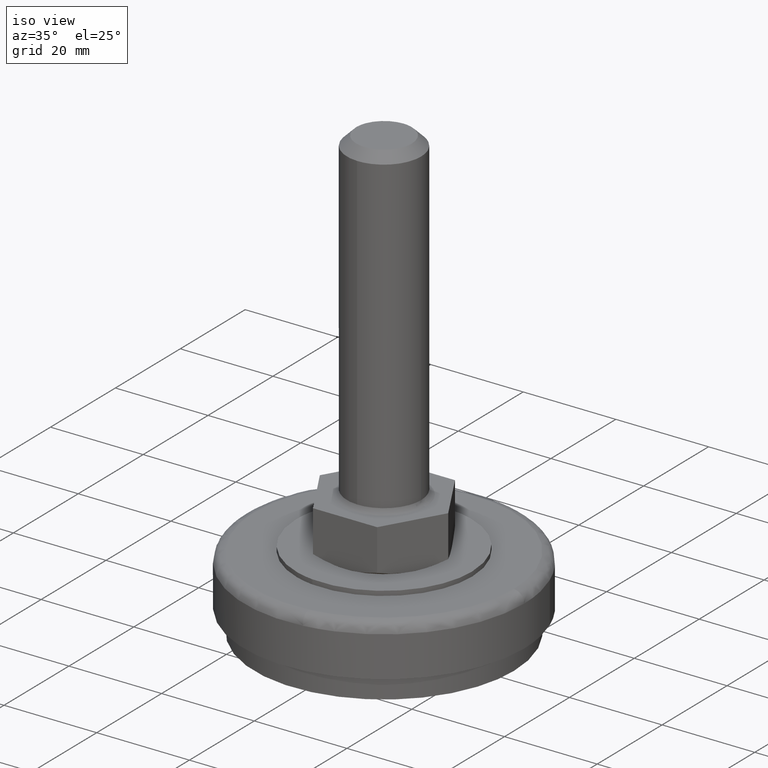
[diagram: clean part render]
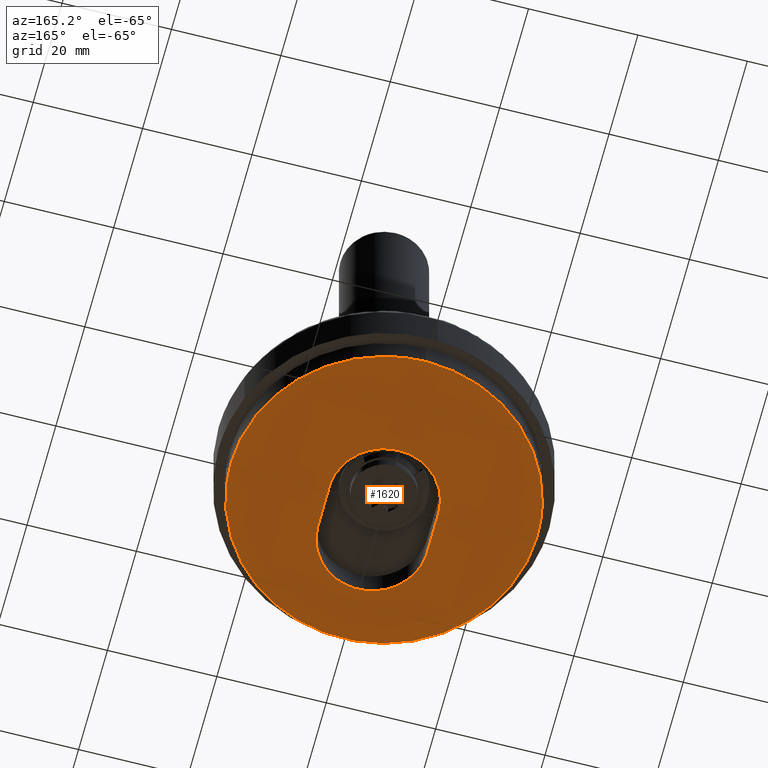
[diagram: tour spotlight — one face highlighted and labeled with its STEP entity id]
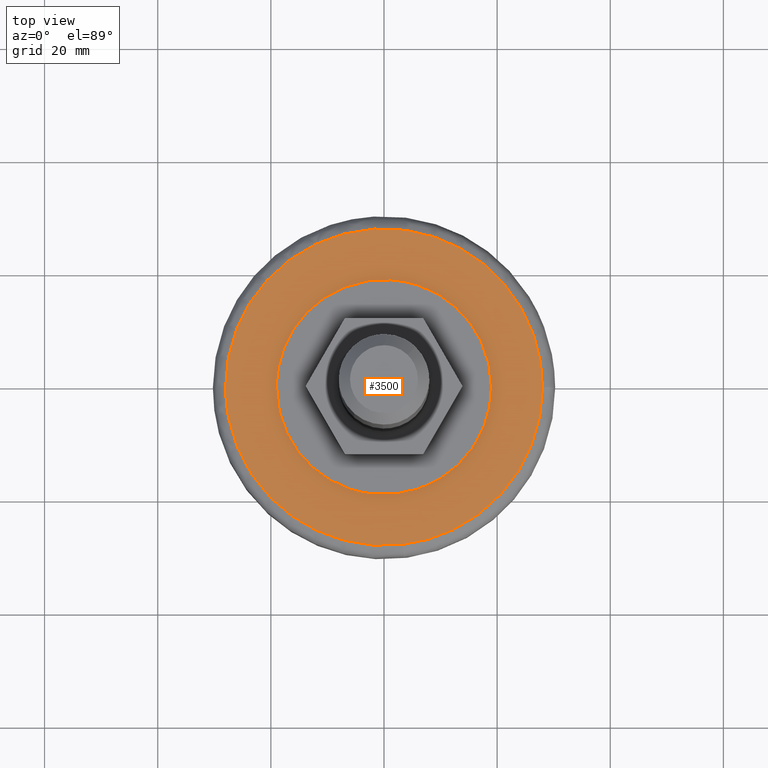
[diagram: tour spotlight — one face highlighted and labeled with its STEP entity id]
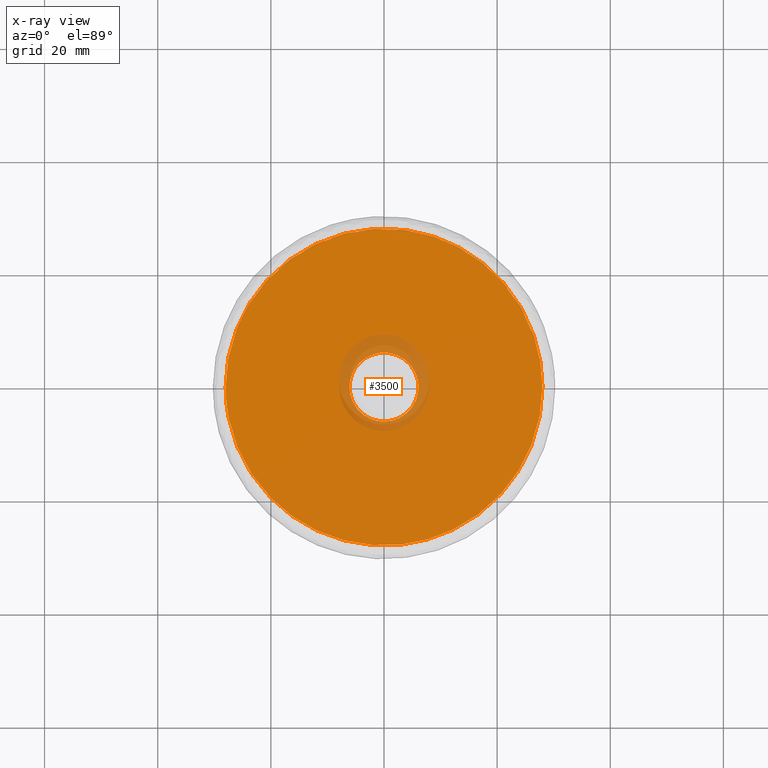
[diagram: x-ray of the same camera — body ghosted, this tour face saturated]
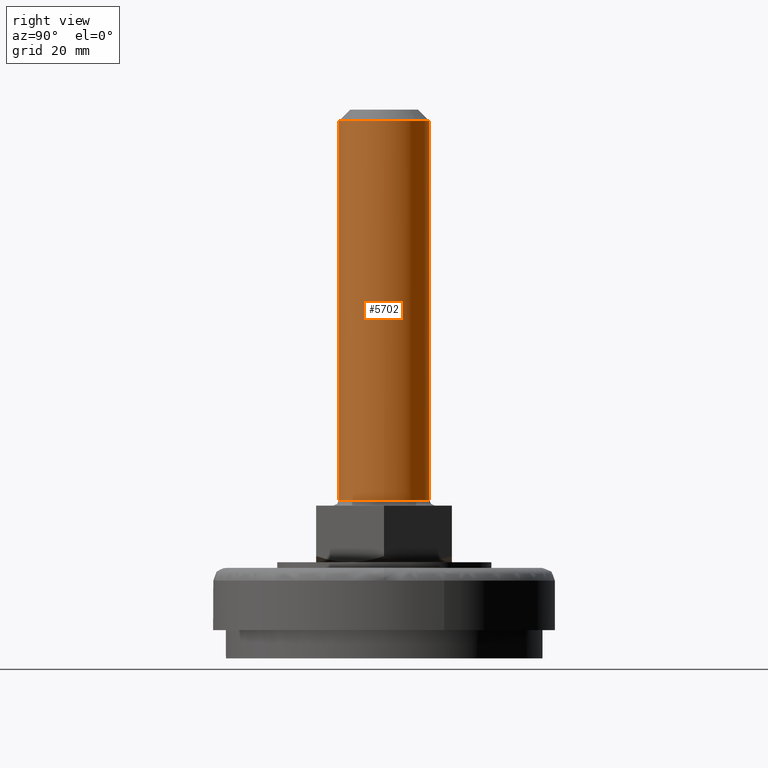
[diagram: tour spotlight — one face highlighted and labeled with its STEP entity id]
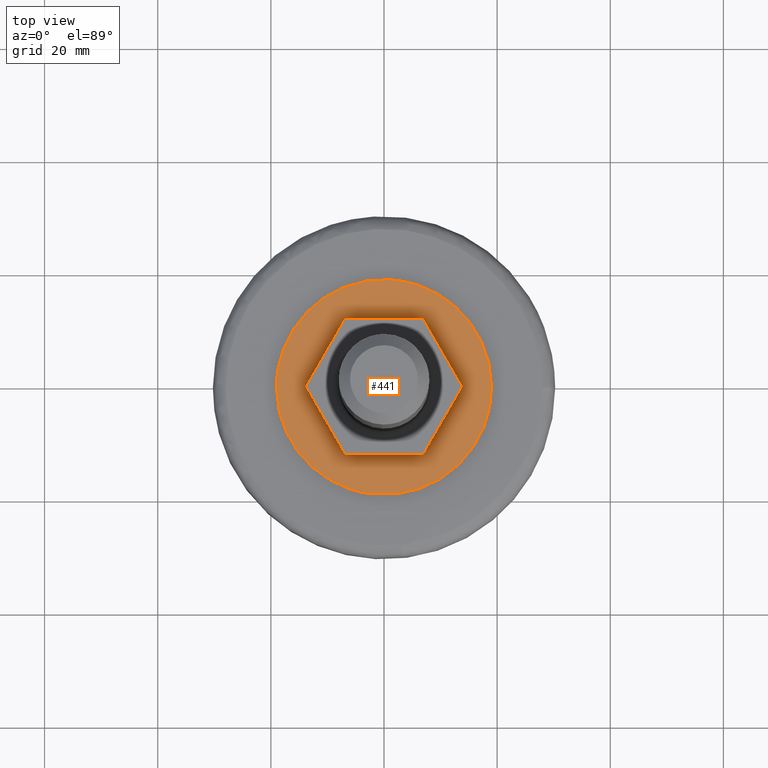
[diagram: tour spotlight — one face highlighted and labeled with its STEP entity id]
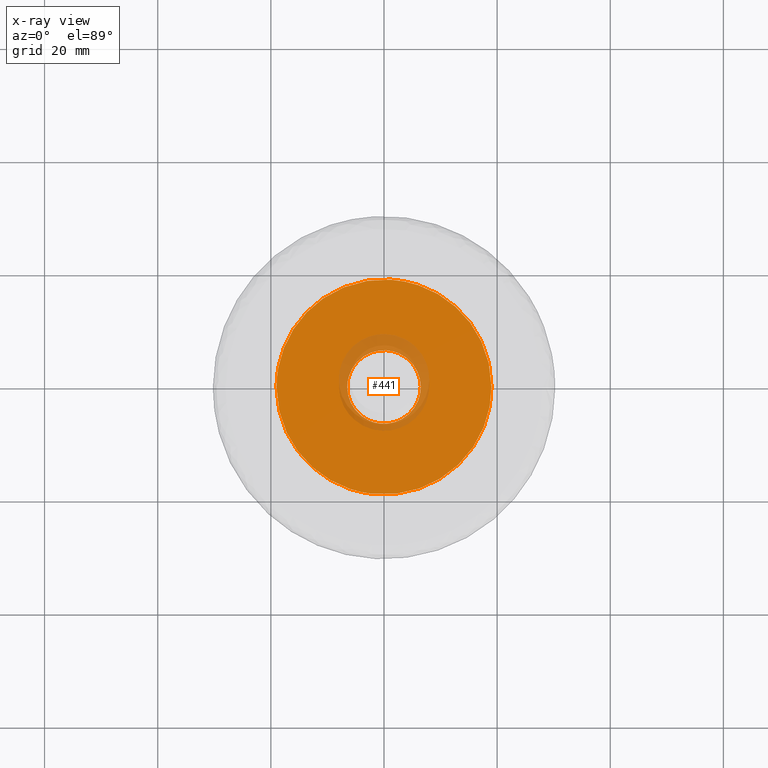
[diagram: x-ray of the same camera — body ghosted, this tour face saturated]
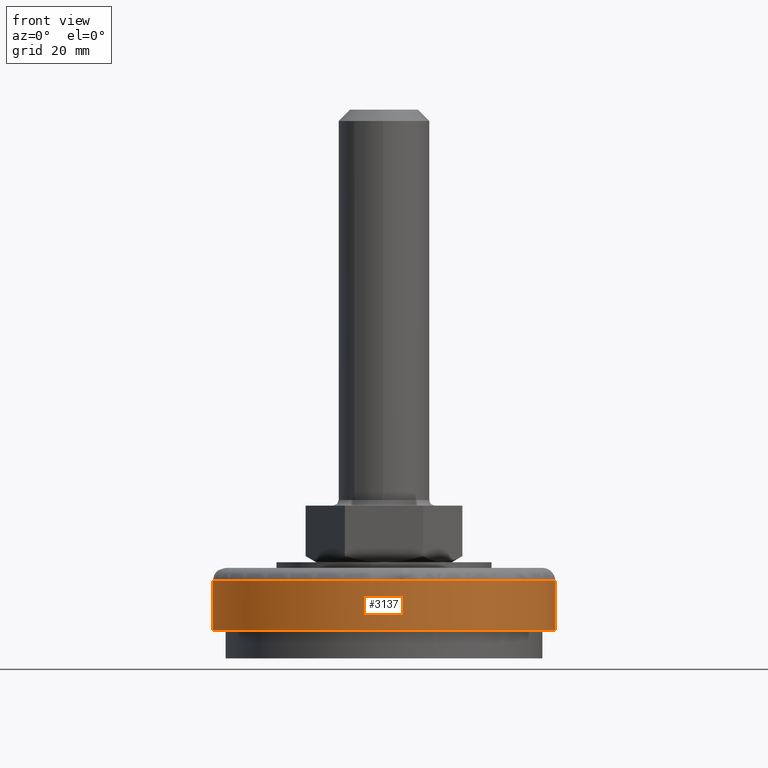
[diagram: tour spotlight — one face highlighted and labeled with its STEP entity id]
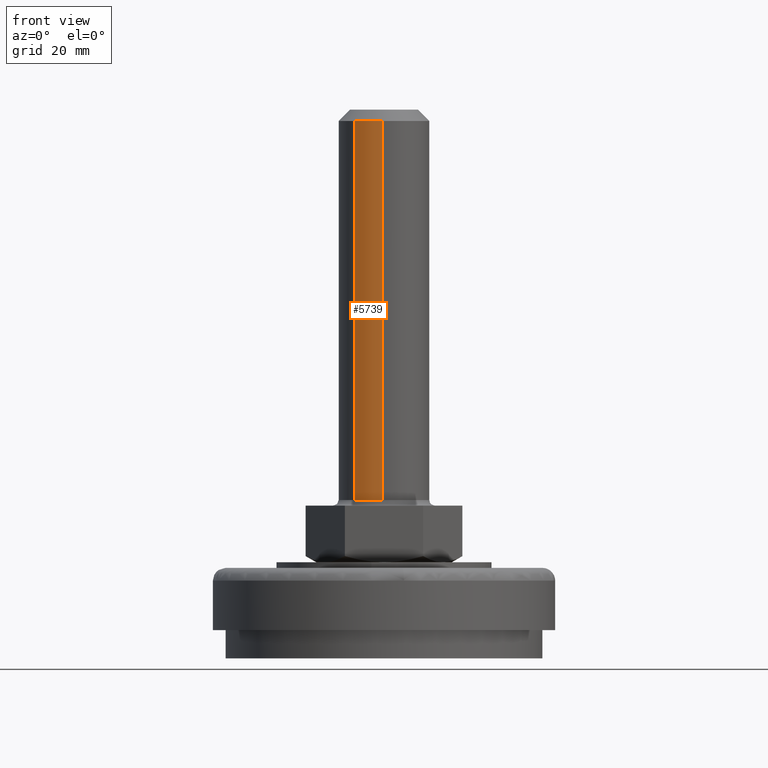
[diagram: tour spotlight — one face highlighted and labeled with its STEP entity id]
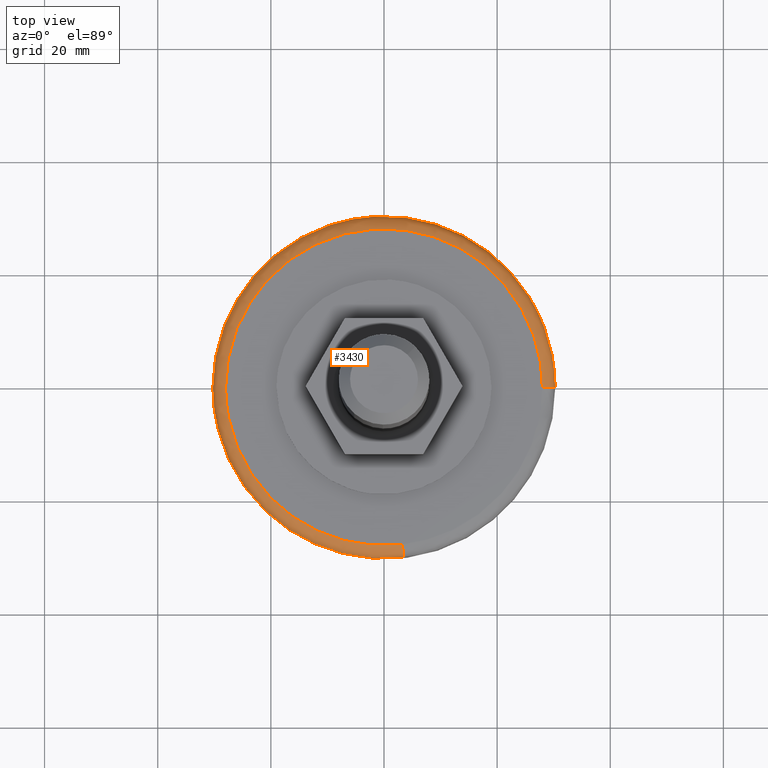
[diagram: tour spotlight — one face highlighted and labeled with its STEP entity id]
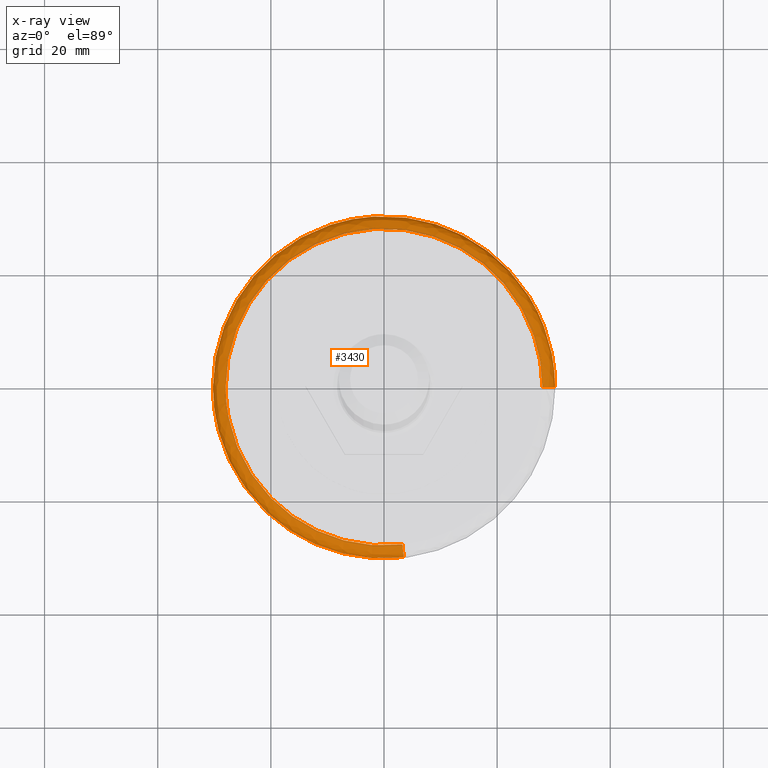
[diagram: x-ray of the same camera — body ghosted, this tour face saturated]
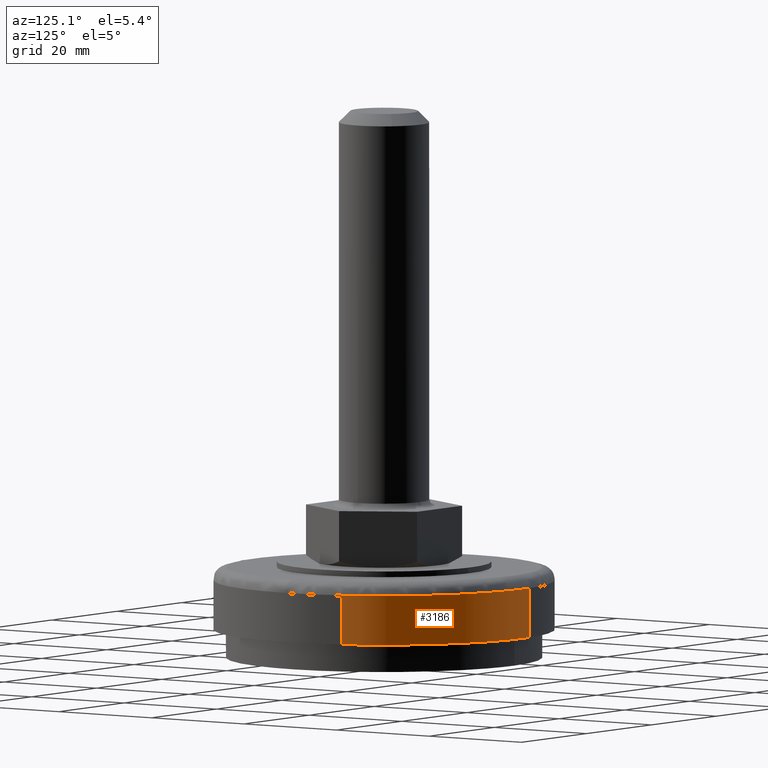
[diagram: tour spotlight — one face highlighted and labeled with its STEP entity id]
A machine part: a face-by-face anatomy tour. The part has 119 B-rep faces; the first image is the clean iso view, then the 8 largest visible faces are spotlighted one at a time (largest first), each with its STEP entity span.

Face 1 — auxiliary view, entity #1620. In plain terms, the highlighted face is a freeform B-spline surface patch.
Definition (entity closure, byte-faithful):
#914=CARTESIAN_POINT('',(-19.309898065484528,20.276287547295130,-1.321481E-014));
#915=VERTEX_POINT('',#914);
#916=CARTESIAN_POINT('',(-28.0,0.0,0.0));
#917=VERTEX_POINT('',#916);
#918=CARTESIAN_POINT('',(-19.309898065484546,20.276287547295151,0.0));
#919=CARTESIAN_POINT('',(-28.0,12.000365135820541,0.0));
#920=CARTESIAN_POINT('',(-28.0,0.0,0.0));
#928=(BOUNDED_CURVE()B_SPLINE_CURVE(2,(#918,#919,#920),.UNSPECIFIED.,.F.,.U.)B_SPLINE_CURVE_WITH_KNOTS((3,3),(0.871317018397969,1.0),.UNSPECIFIED.)CURVE()GEOMETRIC_REPRESENTATION_ITEM()RATIONAL_B_SPLINE_CURVE((0.853680523622142,0.849238509248275,1.0))REPRESENTATION_ITEM(''));
#929=EDGE_CURVE('',#915,#917,#928,.T.);
#931=CARTESIAN_POINT('',(28.0,0.0,0.0));
#932=VERTEX_POINT('',#931);
#933=CARTESIAN_POINT('',(-28.0,0.0,0.0));
#934=CARTESIAN_POINT('',(-28.000000000000004,-28.000000000000004,0.0));
#935=CARTESIAN_POINT('',(0.0,-28.0,0.0));
#936=CARTESIAN_POINT('',(28.000000000000004,-28.000000000000004,0.0));
#937=CARTESIAN_POINT('',(28.0,0.0,0.0));
#945=(BOUNDED_CURVE()B_SPLINE_CURVE(2,(#933,#934,#935,#936,#937),.UNSPECIFIED.,.F.,.U.)B_SPLINE_CURVE_WITH_KNOTS((3,2,3),(0.0,0.250000000000000,0.500000000000000),.UNSPECIFIED.)CURVE()GEOMETRIC_REPRESENTATION_ITEM()RATIONAL_B_SPLINE_CURVE((1.0,0.707106781186547,1.0,0.707106781186547,1.0))REPRESENTATION_ITEM(''));
#946=EDGE_CURVE('',#917,#932,#945,.T.);
#948=CARTESIAN_POINT('',(-0.244315367742546,27.998934086859830,2.036427E-013));
#949=VERTEX_POINT('',#948);
#950=CARTESIAN_POINT('',(28.0,0.0,0.0));
#951=CARTESIAN_POINT('',(28.000000000000004,28.000000000000004,0.0));
#952=CARTESIAN_POINT('',(0.0,28.0,0.0));
#953=CARTESIAN_POINT('',(-0.122160009084856,28.000000000000004,0.0));
#954=CARTESIAN_POINT('',(-0.244315367742546,27.998934086859826,2.036427E-013));
#962=(BOUNDED_CURVE()B_SPLINE_CURVE(2,(#950,#951,#952,#953,#954),.UNSPECIFIED.,.F.,.U.)B_SPLINE_CURVE_WITH_KNOTS((3,2,3),(0.500000000000000,0.750000000000000,0.751539720536988),.UNSPECIFIED.)CURVE()GEOMETRIC_REPRESENTATION_ITEM()RATIONAL_B_SPLINE_CURVE((1.0,0.707106781186547,1.0,0.998196105183394,0.996414430317953))REPRESENTATION_ITEM(''));
#963=EDGE_CURVE('',#932,#949,#962,.T.);
#1062=CARTESIAN_POINT('',(-0.244315367742546,27.998934086859830,2.036427E-013));
#1063=CARTESIAN_POINT('',(-11.302079065384223,27.902445356416138,0.0));
#1064=CARTESIAN_POINT('',(-19.309898065484546,20.276287547295151,0.0));
#1072=(BOUNDED_CURVE()B_SPLINE_CURVE(2,(#1062,#1063,#1064),.UNSPECIFIED.,.F.,.U.)B_SPLINE_CURVE_WITH_KNOTS((3,3),(0.751539720536988,0.871317018397969),.UNSPECIFIED.)CURVE()GEOMETRIC_REPRESENTATION_ITEM()RATIONAL_B_SPLINE_CURVE((0.996414430317953,0.857815122246900,0.853680523622142))REPRESENTATION_ITEM(''));
#1073=EDGE_CURVE('',#949,#915,#1072,.T.);
#1378=CARTESIAN_POINT('',(10.0,2.449216E-015,0.0));
#1379=VERTEX_POINT('',#1378);
#1380=CARTESIAN_POINT('',(10.0,-8.0,0.0));
#1381=VERTEX_POINT('',#1380);
#1382=CARTESIAN_POINT('',(10.0,2.449216E-015,0.0));
#1383=CARTESIAN_POINT('',(10.0,-8.0,0.0));
#1384=QUASI_UNIFORM_CURVE('',1,(#1382,#1383),.UNSPECIFIED.,.F.,.U.);
#1385=EDGE_CURVE('',#1379,#1381,#1384,.T.);
#1427=CARTESIAN_POINT('',(-10.0,0.0,0.0));
#1428=VERTEX_POINT('',#1427);
#1429=CARTESIAN_POINT('',(-10.0,0.0,0.0));
#1430=CARTESIAN_POINT('',(-10.000000000000002,10.000000000000002,0.0));
#1431=CARTESIAN_POINT('',(0.0,10.0,0.0));
#1432=CARTESIAN_POINT('',(10.000000000000002,10.000000000000002,0.0));
#1433=CARTESIAN_POINT('',(10.0,0.0,0.0));
#1441=(BOUNDED_CURVE()B_SPLINE_CURVE(2,(#1429,#1430,#1431,#1432,#1433),.UNSPECIFIED.,.F.,.U.)B_SPLINE_CURVE_WITH_KNOTS((3,2,3),(0.0,0.500000000000000,1.0),.UNSPECIFIED.)CURVE()GEOMETRIC_REPRESENTATION_ITEM()RATIONAL_B_SPLINE_CURVE((1.0,0.707106781186548,1.0,0.707106781186548,1.0))REPRESENTATION_ITEM(''));
#1442=EDGE_CURVE('',#1428,#1379,#1441,.T.);
#1475=CARTESIAN_POINT('',(-10.0,-8.0,0.0));
#1476=VERTEX_POINT('',#1475);
#1477=CARTESIAN_POINT('',(-10.0,-8.0,0.0));
#1478=CARTESIAN_POINT('',(-10.0,0.0,0.0));
#1479=QUASI_UNIFORM_CURVE('',1,(#1477,#1478),.UNSPECIFIED.,.F.,.U.);
#1480=EDGE_CURVE('',#1476,#1428,#1479,.T.);
#1516=CARTESIAN_POINT('',(10.0,-8.0,0.0));
#1517=CARTESIAN_POINT('',(10.000000000000002,-18.000000000000007,0.0));
#1518=CARTESIAN_POINT('',(0.0,-18.0,0.0));
#1519=CARTESIAN_POINT('',(-10.000000000000002,-18.000000000000007,0.0));
#1520=CARTESIAN_POINT('',(-10.0,-8.0,0.0));
#1528=(BOUNDED_CURVE()B_SPLINE_CURVE(2,(#1516,#1517,#1518,#1519,#1520),.UNSPECIFIED.,.F.,.U.)B_SPLINE_CURVE_WITH_KNOTS((3,2,3),(0.0,0.500000000000000,1.0),.UNSPECIFIED.)CURVE()GEOMETRIC_REPRESENTATION_ITEM()RATIONAL_B_SPLINE_CURVE((1.0,0.707106781186548,1.0,0.707106781186548,1.0))REPRESENTATION_ITEM(''));
#1529=EDGE_CURVE('',#1381,#1476,#1528,.T.);
#1603=CARTESIAN_POINT('',(-30.797199891461140,30.796080701851832,0.0));
#1604=CARTESIAN_POINT('',(30.797201393498181,30.796080701851832,0.0));
#1605=CARTESIAN_POINT('',(-30.797199891461140,-30.797148149514172,0.0));
#1606=CARTESIAN_POINT('',(30.797201393498181,-30.797148149514172,0.0));
#1607=B_SPLINE_SURFACE_WITH_KNOTS('',1,1,((#1603,#1605),(#1604,#1606)),.UNSPECIFIED.,.F.,.F.,.U.,(2,2),(2,2),(0.0,61.594401284959318),(0.0,61.593228851366000),.UNSPECIFIED.);
#1608=ORIENTED_EDGE('',*,*,#929,.F.);
#1609=ORIENTED_EDGE('',*,*,#1073,.F.);
#1610=ORIENTED_EDGE('',*,*,#963,.F.);
#1611=ORIENTED_EDGE('',*,*,#946,.F.);
#1612=EDGE_LOOP('',(#1608,#1609,#1610,#1611));
#1613=FACE_OUTER_BOUND('',#1612,.T.);
#1614=ORIENTED_EDGE('',*,*,#1480,.F.);
#1615=ORIENTED_EDGE('',*,*,#1529,.F.);
#1616=ORIENTED_EDGE('',*,*,#1385,.F.);
#1617=ORIENTED_EDGE('',*,*,#1442,.F.);
#1618=EDGE_LOOP('',(#1614,#1615,#1616,#1617));
#1619=FACE_BOUND('',#1618,.T.);
#1620=ADVANCED_FACE('',(#1613,#1619),#1607,.T.);

Face 2 — top view, entity #3500. An x-ray twin of the same camera follows (body ghosted, this face saturated) — the face is partly hidden behind the body. In plain terms, the highlighted face is a freeform B-spline surface patch.
Definition (entity closure, byte-faithful):
#2634=CARTESIAN_POINT('',(-0.757180812816516,6.052823904319579,16.0));
#2635=VERTEX_POINT('',#2634);
#2641=CARTESIAN_POINT('',(-6.100000000000001,0.0,16.0));
#2642=VERTEX_POINT('',#2641);
#2643=CARTESIAN_POINT('',(-0.757180812816516,6.052823904319580,16.0));
#2644=CARTESIAN_POINT('',(-6.100000000000002,5.384461460684097,16.0));
#2645=CARTESIAN_POINT('',(-6.100000000000001,0.0,16.0));
#2653=(BOUNDED_CURVE()B_SPLINE_CURVE(2,(#2643,#2644,#2645),.UNSPECIFIED.,.F.,.U.)B_SPLINE_CURVE_WITH_KNOTS((3,3),(0.271473928977921,0.500000000000000),.UNSPECIFIED.)CURVE()GEOMETRIC_REPRESENTATION_ITEM()RATIONAL_B_SPLINE_CURVE((0.954005430260708,0.732265053902206,1.0))REPRESENTATION_ITEM(''));
#2654=EDGE_CURVE('',#2635,#2642,#2653,.T.);
#2656=CARTESIAN_POINT('',(0.053231866717910,-6.099767730689893,16.0));
#2657=VERTEX_POINT('',#2656);
#2658=CARTESIAN_POINT('',(-6.100000000000001,0.0,16.0));
#2659=CARTESIAN_POINT('',(-6.100000000000001,-6.100000000000001,16.0));
#2660=CARTESIAN_POINT('',(0.0,-6.100000000000001,16.0));
#2661=CARTESIAN_POINT('',(0.026616440184137,-6.100000000000000,16.000000000000007));
#2662=CARTESIAN_POINT('',(0.053231866717910,-6.099767730689893,16.000000000000004));
#2670=(BOUNDED_CURVE()B_SPLINE_CURVE(2,(#2658,#2659,#2660,#2661,#2662),.UNSPECIFIED.,.F.,.U.)B_SPLINE_CURVE_WITH_KNOTS((3,2,3),(0.500000000000000,0.750000000000000,0.751539894345258),.UNSPECIFIED.)CURVE()GEOMETRIC_REPRESENTATION_ITEM()RATIONAL_B_SPLINE_CURVE((1.0,0.707106781186547,1.0,0.998195901554338,0.996414028076635))REPRESENTATION_ITEM(''));
#2671=EDGE_CURVE('',#2642,#2657,#2670,.T.);
#2751=CARTESIAN_POINT('',(6.100000000000001,0.0,16.0));
#2752=VERTEX_POINT('',#2751);
#2753=CARTESIAN_POINT('',(0.053231866717910,-6.099767730689893,16.000000000000004));
#2754=CARTESIAN_POINT('',(6.100000000000001,-6.046998384276772,16.000000000000004));
#2755=CARTESIAN_POINT('',(6.100000000000001,0.0,16.0));
#2763=(BOUNDED_CURVE()B_SPLINE_CURVE(2,(#2753,#2754,#2755),.UNSPECIFIED.,.F.,.U.)B_SPLINE_CURVE_WITH_KNOTS((3,3),(0.751539894345257,1.0),.UNSPECIFIED.)CURVE()GEOMETRIC_REPRESENTATION_ITEM()RATIONAL_B_SPLINE_CURVE((0.996414028076637,0.708910879632208,1.0))REPRESENTATION_ITEM(''));
#2764=EDGE_CURVE('',#2657,#2752,#2763,.T.);
#2766=CARTESIAN_POINT('',(6.100000000000001,0.0,16.0));
#2767=CARTESIAN_POINT('',(6.100000000000001,6.100000000000001,16.0));
#2768=CARTESIAN_POINT('',(0.0,6.100000000000001,16.0));
#2769=CARTESIAN_POINT('',(-0.380060058085389,6.100000000000001,16.0));
#2770=CARTESIAN_POINT('',(-0.757180812816516,6.052823904319579,15.999999999999998));
#2778=(BOUNDED_CURVE()B_SPLINE_CURVE(2,(#2766,#2767,#2768,#2769,#2770),.UNSPECIFIED.,.F.,.U.)B_SPLINE_CURVE_WITH_KNOTS((3,2,3),(0.0,0.250000000000000,0.271473928977921),.UNSPECIFIED.)CURVE()GEOMETRIC_REPRESENTATION_ITEM()RATIONAL_B_SPLINE_CURVE((1.0,0.707106781186547,1.0,0.974841727284341,0.954005430260708))REPRESENTATION_ITEM(''));
#2779=EDGE_CURVE('',#2752,#2635,#2778,.T.);
#3362=CARTESIAN_POINT('',(3.232998422089914,-27.812725892277491,16.0));
#3363=VERTEX_POINT('',#3362);
#3364=CARTESIAN_POINT('',(-28.0,0.0,16.0));
#3365=VERTEX_POINT('',#3364);
#3366=CARTESIAN_POINT('',(3.232998422089914,-27.812725892277491,15.999999999999996));
#3367=CARTESIAN_POINT('',(1.621923214939966,-27.999999999999996,16.000000000000004));
#3368=CARTESIAN_POINT('',(0.0,-28.0,16.0));
#3369=CARTESIAN_POINT('',(-28.000000000000004,-28.000000000000004,16.0));
#3370=CARTESIAN_POINT('',(-28.0,0.0,16.0));
#3378=(BOUNDED_CURVE()B_SPLINE_CURVE(2,(#3366,#3367,#3368,#3369,#3370),.UNSPECIFIED.,.F.,.U.)B_SPLINE_CURVE_WITH_KNOTS((3,2,3),(0.729999999997599,0.750000000000000,1.0),.UNSPECIFIED.)CURVE()GEOMETRIC_REPRESENTATION_ITEM()RATIONAL_B_SPLINE_CURVE((0.956886118185933,0.976568542492110,1.0,0.707106781186547,1.0))REPRESENTATION_ITEM(''));
#3379=EDGE_CURVE('',#3363,#3365,#3378,.T.);
#3381=CARTESIAN_POINT('',(28.000000000852651,2.634884E-016,16.0));
#3382=VERTEX_POINT('',#3381);
#3383=CARTESIAN_POINT('',(-28.0,0.0,16.0));
#3384=CARTESIAN_POINT('',(-28.000000000000004,28.000000000000004,16.0));
#3385=CARTESIAN_POINT('',(0.0,28.0,16.0));
#3386=CARTESIAN_POINT('',(28.000000000000004,28.000000000000004,16.0));
#3387=CARTESIAN_POINT('',(28.000000000852651,2.634884E-016,16.0));
#3395=(BOUNDED_CURVE()B_SPLINE_CURVE(2,(#3383,#3384,#3385,#3386,#3387),.UNSPECIFIED.,.F.,.U.)B_SPLINE_CURVE_WITH_KNOTS((3,2,3),(0.0,0.250000000000000,0.500000000000000),.UNSPECIFIED.)CURVE()GEOMETRIC_REPRESENTATION_ITEM()RATIONAL_B_SPLINE_CURVE((1.0,0.707106781186547,1.0,0.707106781186547,1.0))REPRESENTATION_ITEM(''));
#3396=EDGE_CURVE('',#3365,#3382,#3395,.T.);
#3448=CARTESIAN_POINT('',(28.000000000852651,2.634884E-016,16.0));
#3449=CARTESIAN_POINT('',(27.999999999999996,-24.933767622798097,16.0));
#3450=CARTESIAN_POINT('',(3.232998422089914,-27.812725892277495,16.000000000000004));
#3458=(BOUNDED_CURVE()B_SPLINE_CURVE(2,(#3448,#3449,#3450),.UNSPECIFIED.,.F.,.U.)B_SPLINE_CURVE_WITH_KNOTS((3,3),(0.500000000000000,0.729999999997599),.UNSPECIFIED.)CURVE()GEOMETRIC_REPRESENTATION_ITEM()RATIONAL_B_SPLINE_CURVE((1.0,0.730538238694437,0.956886118185934))REPRESENTATION_ITEM(''));
#3459=EDGE_CURVE('',#3382,#3363,#3458,.T.);
#3484=CARTESIAN_POINT('',(-30.797199891503720,-30.797042036342400,16.0));
#3485=CARTESIAN_POINT('',(30.797201394393419,-30.797042036342400,16.0));
#3486=CARTESIAN_POINT('',(-30.797199891503720,30.797193883402450,16.0));
#3487=CARTESIAN_POINT('',(30.797201394393419,30.797193883402450,16.0));
#3488=B_SPLINE_SURFACE_WITH_KNOTS('',1,1,((#3484,#3486),(#3485,#3487)),.UNSPECIFIED.,.F.,.F.,.U.,(2,2),(2,2),(0.0,61.594401285897142),(0.0,61.594235919744847),.UNSPECIFIED.);
#3489=ORIENTED_EDGE('',*,*,#3379,.F.);
#3490=ORIENTED_EDGE('',*,*,#3459,.F.);
#3491=ORIENTED_EDGE('',*,*,#3396,.F.);
#3492=EDGE_LOOP('',(#3489,#3490,#3491));
#3493=FACE_OUTER_BOUND('',#3492,.T.);
#3494=ORIENTED_EDGE('',*,*,#2671,.F.);
#3495=ORIENTED_EDGE('',*,*,#2654,.F.);
#3496=ORIENTED_EDGE('',*,*,#2779,.F.);
#3497=ORIENTED_EDGE('',*,*,#2764,.F.);
#3498=EDGE_LOOP('',(#3494,#3495,#3496,#3497));
#3499=FACE_BOUND('',#3498,.T.);
#3500=ADVANCED_FACE('',(#3493,#3499),#3488,.T.);

Face 3 — right view, entity #5702. In plain terms, the highlighted face is a freeform B-spline surface patch.
Definition (entity closure, byte-faithful):
#5439=CARTESIAN_POINT('',(0.069812284311303,7.999695384554780,94.999999999955747));
#5440=VERTEX_POINT('',#5439);
#5446=CARTESIAN_POINT('',(-8.0,0.0,95.0));
#5447=VERTEX_POINT('',#5446);
#5448=CARTESIAN_POINT('',(-8.0,0.0,95.0));
#5449=CARTESIAN_POINT('',(-8.0,8.0,95.000000000000014));
#5450=CARTESIAN_POINT('',(0.0,8.0,95.0));
#5451=CARTESIAN_POINT('',(0.034906806889531,8.0,95.0));
#5452=CARTESIAN_POINT('',(0.069812284311303,7.999695384554780,94.999999999955747));
#5460=(BOUNDED_CURVE()B_SPLINE_CURVE(2,(#5448,#5449,#5450,#5451,#5452),.UNSPECIFIED.,.F.,.U.)B_SPLINE_CURVE_WITH_KNOTS((3,2,3),(0.500000000000000,0.750000000000000,0.751539894349251),.UNSPECIFIED.)CURVE()GEOMETRIC_REPRESENTATION_ITEM()RATIONAL_B_SPLINE_CURVE((1.0,0.707106781186548,1.0,0.998195901549661,0.996414028067396))REPRESENTATION_ITEM(''));
#5461=EDGE_CURVE('',#5447,#5440,#5460,.T.);
#5463=CARTESIAN_POINT('',(-5.228297092188591,-6.055155614499610,95.0));
#5464=VERTEX_POINT('',#5463);
#5465=CARTESIAN_POINT('',(-5.228297092188591,-6.055155614499611,94.999999999999986));
#5466=CARTESIAN_POINT('',(-8.0,-3.661941108398844,95.000000000000014));
#5467=CARTESIAN_POINT('',(-8.0,0.0,95.0));
#5475=(BOUNDED_CURVE()B_SPLINE_CURVE(2,(#5465,#5466,#5467),.UNSPECIFIED.,.F.,.U.)B_SPLINE_CURVE_WITH_KNOTS((3,3),(0.363957611530503,0.500000000000000),.UNSPECIFIED.)CURVE()GEOMETRIC_REPRESENTATION_ITEM()RATIONAL_B_SPLINE_CURVE((0.854696230344882,0.840616427784396,1.0))REPRESENTATION_ITEM(''));
#5476=EDGE_CURVE('',#5464,#5447,#5475,.T.);
#5478=CARTESIAN_POINT('',(-0.209404390635684,-7.997258892961828,95.000000000000014));
#5479=VERTEX_POINT('',#5478);
#5493=CARTESIAN_POINT('',(8.0,0.0,95.0));
#5494=VERTEX_POINT('',#5493);
#5495=CARTESIAN_POINT('',(8.0,0.0,95.0));
#5496=CARTESIAN_POINT('',(8.0,-8.0,95.000000000000014));
#5497=CARTESIAN_POINT('',(0.0,-8.0,95.0));
#5498=CARTESIAN_POINT('',(-0.104720135886738,-8.0,95.0));
#5499=CARTESIAN_POINT('',(-0.209404390635684,-7.997258892961828,95.000000000000014));
#5507=(BOUNDED_CURVE()B_SPLINE_CURVE(2,(#5495,#5496,#5497,#5498,#5499),.UNSPECIFIED.,.F.,.U.)B_SPLINE_CURVE_WITH_KNOTS((3,2,3),(0.0,0.250000000000000,0.254603061799192),.UNSPECIFIED.)CURVE()GEOMETRIC_REPRESENTATION_ITEM()RATIONAL_B_SPLINE_CURVE((1.0,0.707106781186548,1.0,0.994607177652950,0.989412943262184))REPRESENTATION_ITEM(''));
#5508=EDGE_CURVE('',#5494,#5479,#5507,.T.);
#5510=CARTESIAN_POINT('',(5.517113942282281,5.793224814201137,94.999999999999915));
#5511=VERTEX_POINT('',#5510);
#5512=CARTESIAN_POINT('',(5.517113942282281,5.793224814201137,94.999999999999915));
#5513=CARTESIAN_POINT('',(8.000000000000002,3.428675582035117,95.000000000000028));
#5514=CARTESIAN_POINT('',(8.0,0.0,95.0));
#5522=(BOUNDED_CURVE()B_SPLINE_CURVE(2,(#5512,#5513,#5514),.UNSPECIFIED.,.F.,.U.)B_SPLINE_CURVE_WITH_KNOTS((3,3),(0.871317023850069,1.0),.UNSPECIFIED.)CURVE()GEOMETRIC_REPRESENTATION_ITEM()RATIONAL_B_SPLINE_CURVE((0.853680523245740,0.849238515635808,1.0))REPRESENTATION_ITEM(''));
#5523=EDGE_CURVE('',#5511,#5494,#5522,.T.);
#5561=CARTESIAN_POINT('',(0.069812284311303,7.999695384554780,94.999999999955747));
#5562=CARTESIAN_POINT('',(3.229168918402732,7.972124096605089,94.999999999999986));
#5563=CARTESIAN_POINT('',(5.517113942282281,5.793224814201137,94.999999999999929));
#5571=(BOUNDED_CURVE()B_SPLINE_CURVE(2,(#5561,#5562,#5563),.UNSPECIFIED.,.F.,.U.)B_SPLINE_CURVE_WITH_KNOTS((3,3),(0.751539894349252,0.871317023850070),.UNSPECIFIED.)CURVE()GEOMETRIC_REPRESENTATION_ITEM()RATIONAL_B_SPLINE_CURVE((0.996414028067393,0.857815109938221,0.853680523245740))REPRESENTATION_ITEM(''));
#5572=EDGE_CURVE('',#5440,#5511,#5571,.T.);
#5578=CARTESIAN_POINT('',(-5.228298970437571,-6.055153992733909,96.675000000040654));
#5579=CARTESIAN_POINT('',(-8.096452792971595,-3.578657821801565,96.675000000040654));
#5580=CARTESIAN_POINT('',(-7.997258599804455,0.209415586462988,96.675000000040669));
#5581=CARTESIAN_POINT('',(-7.787843013341468,8.206674186267444,96.675000000040654));
#5582=CARTESIAN_POINT('',(0.209415586462988,7.997258599804455,96.675000000040669));
#5583=CARTESIAN_POINT('',(8.206674186267444,7.787843013341468,96.675000000040654));
#5584=CARTESIAN_POINT('',(7.997258599804455,-0.209415586462988,96.675000000040669));
#5585=CARTESIAN_POINT('',(7.787843013341468,-8.206674186267444,96.675000000040654));
#5586=CARTESIAN_POINT('',(-0.209415586462988,-7.997258599804455,96.675000000040669));
#5587=CARTESIAN_POINT('',(-5.228298970437571,-6.055153992733909,26.283124998332411));
#5588=CARTESIAN_POINT('',(-8.096452792971595,-3.578657821801565,26.283124998332408));
#5589=CARTESIAN_POINT('',(-7.997258599804455,0.209415586462988,26.283124998332411));
#5590=CARTESIAN_POINT('',(-7.787843013341468,8.206674186267444,26.283124998332404));
#5591=CARTESIAN_POINT('',(0.209415586462988,7.997258599804455,26.283124998332411));
#5592=CARTESIAN_POINT('',(8.206674186267444,7.787843013341468,26.283124998332404));
#5593=CARTESIAN_POINT('',(7.997258599804455,-0.209415586462988,26.283124998332411));
#5594=CARTESIAN_POINT('',(7.787843013341468,-8.206674186267444,26.283124998332404));
#5595=CARTESIAN_POINT('',(-0.209415586462988,-7.997258599804455,26.283124998332411));
#5603=(BOUNDED_SURFACE()B_SPLINE_SURFACE(2,1,((#5578,#5587),(#5579,#5588),(#5580,#5589),(#5581,#5590),(#5582,#5591),(#5583,#5592),(#5584,#5593),(#5585,#5594),(#5586,#5595)),.UNSPECIFIED.,.F.,.F.,.U.)B_SPLINE_SURFACE_WITH_KNOTS((3,2,2,2,3),(2,2),(0.0,7.422707037725862,20.677541033664902,33.932375029603939,47.187209025542977),(0.0,70.391875001708257),.UNSPECIFIED.)GEOMETRIC_REPRESENTATION_ITEM()RATIONAL_B_SPLINE_SURFACE(((0.855662221768731,0.855662221768731),(0.835979797464467,0.835979797464467),(1.0,1.0),(0.707106781186548,0.707106781186548),(1.0,1.0),(0.707106781186548,0.707106781186548),(1.0,1.0),(0.707106781186548,0.707106781186548),(1.0,1.0)))REPRESENTATION_ITEM('')SURFACE());
#5604=CARTESIAN_POINT('',(-8.0,0.0,28.0));
#5605=VERTEX_POINT('',#5604);
#5606=CARTESIAN_POINT('',(-5.228298971500206,-6.055153991816383,28.0));
#5607=VERTEX_POINT('',#5606);
#5608=CARTESIAN_POINT('',(-8.0,0.0,28.0));
#5609=CARTESIAN_POINT('',(-8.0,-3.661939605966246,28.000000000000004));
#5610=CARTESIAN_POINT('',(-5.228298971500206,-6.055153991816383,28.0));
#5618=(BOUNDED_CURVE()B_SPLINE_CURVE(2,(#5608,#5609,#5610),.UNSPECIFIED.,.F.,.U.)B_SPLINE_CURVE_WITH_KNOTS((3,3),(0.500000000000000,0.636042341549736),.UNSPECIFIED.)CURVE()GEOMETRIC_REPRESENTATION_ITEM()RATIONAL_B_SPLINE_CURVE((1.0,0.840616482754315,0.854696220632916))REPRESENTATION_ITEM(''));
#5619=EDGE_CURVE('',#5605,#5607,#5618,.T.);
#5620=ORIENTED_EDGE('',*,*,#5619,.T.);
#5621=CARTESIAN_POINT('',(-5.228297092188591,-6.055155614499610,95.0));
#5622=CARTESIAN_POINT('',(-5.228298971500206,-6.055153991816383,28.0));
#5623=QUASI_UNIFORM_CURVE('',1,(#5621,#5622),.UNSPECIFIED.,.F.,.U.);
#5624=EDGE_CURVE('',#5464,#5607,#5623,.T.);
#5625=ORIENTED_EDGE('',*,*,#5624,.F.);
#5626=ORIENTED_EDGE('',*,*,#5476,.T.);
#5627=ORIENTED_EDGE('',*,*,#5461,.T.);
#5628=ORIENTED_EDGE('',*,*,#5572,.T.);
#5629=ORIENTED_EDGE('',*,*,#5523,.T.);
#5630=ORIENTED_EDGE('',*,*,#5508,.T.);
#5631=CARTESIAN_POINT('',(-0.209400773091896,-7.997258987678773,28.000000000000028));
#5632=VERTEX_POINT('',#5631);
#5633=CARTESIAN_POINT('',(-0.209404390635684,-7.997258892961828,95.000000000000014));
#5634=CARTESIAN_POINT('',(-0.209400773091896,-7.997258987678773,28.000000000000028));
#5635=QUASI_UNIFORM_CURVE('',1,(#5633,#5634),.UNSPECIFIED.,.F.,.U.);
#5636=EDGE_CURVE('',#5479,#5632,#5635,.T.);
#5637=ORIENTED_EDGE('',*,*,#5636,.T.);
#5638=CARTESIAN_POINT('',(7.999368353630505,-0.100528319068582,27.999999998374079));
#5639=VERTEX_POINT('',#5638);
#5640=CARTESIAN_POINT('',(-0.209400773091896,-7.997258987678774,28.000000000000025));
#5641=CARTESIAN_POINT('',(-0.104718326184934,-8.0,28.0));
#5642=CARTESIAN_POINT('',(0.0,-8.0,28.0));
#5643=CARTESIAN_POINT('',(7.900095439255026,-8.0,28.000000000000004));
#5644=CARTESIAN_POINT('',(7.999368353630505,-0.100528319068582,27.999999998374086));
#5652=(BOUNDED_CURVE()B_SPLINE_CURVE(2,(#5640,#5641,#5642,#5643,#5644),.UNSPECIFIED.,.F.,.U.)B_SPLINE_CURVE_WITH_KNOTS((3,2,3),(0.745397017318800,0.750000000000000,0.997784295921651),.UNSPECIFIED.)CURVE()GEOMETRIC_REPRESENTATION_ITEM()RATIONAL_B_SPLINE_CURVE((0.989413121820521,0.994607270345443,1.0,0.709702639984331,0.994854295643834))REPRESENTATION_ITEM(''));
#5653=EDGE_CURVE('',#5632,#5639,#5652,.T.);
#5654=ORIENTED_EDGE('',*,*,#5653,.T.);
#5655=CARTESIAN_POINT('',(8.0,0.0,28.0));
#5656=VERTEX_POINT('',#5655);
#5657=CARTESIAN_POINT('',(7.999368353630505,-0.100528319068582,27.999999998374083));
#5658=CARTESIAN_POINT('',(8.0,-0.050266143936880,28.0));
#5659=CARTESIAN_POINT('',(8.0,0.0,28.0));
#5667=(BOUNDED_CURVE()B_SPLINE_CURVE(2,(#5657,#5658,#5659),.UNSPECIFIED.,.F.,.U.)B_SPLINE_CURVE_WITH_KNOTS((3,3),(0.997784295921651,1.0),.UNSPECIFIED.)CURVE()GEOMETRIC_REPRESENTATION_ITEM()RATIONAL_B_SPLINE_CURVE((0.994854295643834,0.997404141202217,1.0))REPRESENTATION_ITEM(''));
#5668=EDGE_CURVE('',#5639,#5656,#5667,.T.);
#5669=ORIENTED_EDGE('',*,*,#5668,.T.);
#5670=CARTESIAN_POINT('',(0.557866012695076,7.980525390717061,27.999999998402181));
#5671=VERTEX_POINT('',#5670);
#5672=CARTESIAN_POINT('',(8.0,0.0,28.0));
#5673=CARTESIAN_POINT('',(8.0,7.460294777961397,27.999999999999996));
#5674=CARTESIAN_POINT('',(0.557866012695076,7.980525390717061,27.999999998402185));
#5682=(BOUNDED_CURVE()B_SPLINE_CURVE(2,(#5672,#5673,#5674),.UNSPECIFIED.,.F.,.U.)B_SPLINE_CURVE_WITH_KNOTS((3,3),(0.0,0.237833686531189),.UNSPECIFIED.)CURVE()GEOMETRIC_REPRESENTATION_ITEM()RATIONAL_B_SPLINE_CURVE((1.0,0.721360504038441,0.972879876378722))REPRESENTATION_ITEM(''));
#5683=EDGE_CURVE('',#5656,#5671,#5682,.T.);
#5684=ORIENTED_EDGE('',*,*,#5683,.T.);
#5685=CARTESIAN_POINT('',(0.557866012695076,7.980525390717061,27.999999998402185));
#5686=CARTESIAN_POINT('',(0.279272927089567,8.0,27.999999999999996));
#5687=CARTESIAN_POINT('',(0.0,8.0,28.0));
#5688=CARTESIAN_POINT('',(-8.0,8.0,27.999999999999996));
#5689=CARTESIAN_POINT('',(-8.0,0.0,28.0));
#5697=(BOUNDED_CURVE()B_SPLINE_CURVE(2,(#5685,#5686,#5687,#5688,#5689),.UNSPECIFIED.,.F.,.U.)B_SPLINE_CURVE_WITH_KNOTS((3,2,3),(0.237833686531189,0.250000000000000,0.500000000000000),.UNSPECIFIED.)CURVE()GEOMETRIC_REPRESENTATION_ITEM()RATIONAL_B_SPLINE_CURVE((0.972879876378722,0.985746277148106,1.0,0.707106781186548,1.0))REPRESENTATION_ITEM(''));
#5698=EDGE_CURVE('',#5671,#5605,#5697,.T.);
#5699=ORIENTED_EDGE('',*,*,#5698,.T.);
#5700=EDGE_LOOP('',(#5620,#5625,#5626,#5627,#5628,#5629,#5630,#5637,#5654,#5669,#5684,#5699));
#5701=FACE_OUTER_BOUND('',#5700,.T.);
#5702=ADVANCED_FACE('',(#5701),#5603,.T.);

Face 4 — top view, entity #441. An x-ray twin of the same camera follows (body ghosted, this face saturated) — the face is partly hidden behind the body. In plain terms, the highlighted face is a freeform B-spline surface patch.
Definition (entity closure, byte-faithful):
#70=CARTESIAN_POINT('',(-2.242622773841549,-18.867184291607209,17.000000000001439));
#71=VERTEX_POINT('',#70);
#72=CARTESIAN_POINT('',(19.0,0.0,17.0));
#73=VERTEX_POINT('',#72);
#74=CARTESIAN_POINT('',(-2.242622773841549,-18.867184291607206,17.000000000001442));
#75=CARTESIAN_POINT('',(-1.125244284731685,-19.0,17.000000000000004));
#76=CARTESIAN_POINT('',(0.0,-19.0,17.0));
#77=CARTESIAN_POINT('',(18.999999999999993,-18.999999999999993,17.000000000000004));
#78=CARTESIAN_POINT('',(19.0,0.0,17.0));
#86=(BOUNDED_CURVE()B_SPLINE_CURVE(2,(#74,#75,#76,#77,#78),.UNSPECIFIED.,.F.,.U.)B_SPLINE_CURVE_WITH_KNOTS((3,2,3),(0.229562721501498,0.250000000000000,0.500000000000000),.UNSPECIFIED.)CURVE()GEOMETRIC_REPRESENTATION_ITEM()RATIONAL_B_SPLINE_CURVE((0.956027240250884,0.976056238867147,1.0,0.707106781186548,1.0))REPRESENTATION_ITEM(''));
#87=EDGE_CURVE('',#71,#73,#86,.T.);
#128=CARTESIAN_POINT('',(1.159893727273079,18.964562914568209,17.000000000001840));
#129=VERTEX_POINT('',#128);
#135=CARTESIAN_POINT('',(19.0,0.0,17.0));
#136=CARTESIAN_POINT('',(19.000000000000007,17.873442204197548,17.0));
#137=CARTESIAN_POINT('',(1.159893727273079,18.964562914568209,17.000000000001840));
#145=(BOUNDED_CURVE()B_SPLINE_CURVE(2,(#135,#136,#137),.UNSPECIFIED.,.F.,.U.)B_SPLINE_CURVE_WITH_KNOTS((3,3),(0.500000000000000,0.739333221763210),.UNSPECIFIED.)CURVE()GEOMETRIC_REPRESENTATION_ITEM()RATIONAL_B_SPLINE_CURVE((1.0,0.719603689235118,0.976072597877256))REPRESENTATION_ITEM(''));
#146=EDGE_CURVE('',#73,#129,#145,.T.);
#173=CARTESIAN_POINT('',(-19.0,0.0,17.0));
#174=VERTEX_POINT('',#173);
#175=CARTESIAN_POINT('',(-19.0,0.0,17.0));
#176=CARTESIAN_POINT('',(-18.999999999999996,-16.875340929290282,16.999999999999996));
#177=CARTESIAN_POINT('',(-2.242622773841549,-18.867184291607206,17.000000000001442));
#185=(BOUNDED_CURVE()B_SPLINE_CURVE(2,(#175,#176,#177),.UNSPECIFIED.,.F.,.U.)B_SPLINE_CURVE_WITH_KNOTS((3,3),(0.0,0.229562721501498),.UNSPECIFIED.)CURVE()GEOMETRIC_REPRESENTATION_ITEM()RATIONAL_B_SPLINE_CURVE((1.0,0.731050542319401,0.956027240250884))REPRESENTATION_ITEM(''));
#186=EDGE_CURVE('',#174,#71,#185,.T.);
#188=CARTESIAN_POINT('',(1.159893727273079,18.964562914568209,17.000000000001840));
#189=CARTESIAN_POINT('',(0.580488200741129,19.000000000000004,17.000000000000004));
#190=CARTESIAN_POINT('',(0.0,19.0,17.0));
#191=CARTESIAN_POINT('',(-18.999999999999993,18.999999999999993,17.000000000000004));
#192=CARTESIAN_POINT('',(-19.0,0.0,17.0));
#200=(BOUNDED_CURVE()B_SPLINE_CURVE(2,(#188,#189,#190,#191,#192),.UNSPECIFIED.,.F.,.U.)B_SPLINE_CURVE_WITH_KNOTS((3,2,3),(0.739333221763210,0.750000000000000,1.0),.UNSPECIFIED.)CURVE()GEOMETRIC_REPRESENTATION_ITEM()RATIONAL_B_SPLINE_CURVE((0.976072597877256,0.987503091951429,1.0,0.707106781186548,1.0))REPRESENTATION_ITEM(''));
#201=EDGE_CURVE('',#129,#174,#200,.T.);
#260=CARTESIAN_POINT('',(-0.767222525381227,-6.454561921350482,17.0));
#261=VERTEX_POINT('',#260);
#262=CARTESIAN_POINT('',(6.500000000000000,0.0,17.0));
#263=VERTEX_POINT('',#262);
#264=CARTESIAN_POINT('',(-0.767222525381227,-6.454561921350482,17.0));
#265=CARTESIAN_POINT('',(-0.384956777850900,-6.499999999999999,16.999999999999996));
#266=CARTESIAN_POINT('',(0.0,-6.500000000000000,17.0));
#267=CARTESIAN_POINT('',(6.500000000000000,-6.500000000000000,17.000000000000007));
#268=CARTESIAN_POINT('',(6.500000000000000,0.0,17.0));
#276=(BOUNDED_CURVE()B_SPLINE_CURVE(2,(#264,#265,#266,#267,#268),.UNSPECIFIED.,.F.,.U.)B_SPLINE_CURVE_WITH_KNOTS((3,2,3),(0.229562473509764,0.250000000000000,0.500000000000000),.UNSPECIFIED.)CURVE()GEOMETRIC_REPRESENTATION_ITEM()RATIONAL_B_SPLINE_CURVE((0.956026754176359,0.976055948326758,1.0,0.707106781186547,1.0))REPRESENTATION_ITEM(''));
#277=EDGE_CURVE('',#261,#263,#276,.T.);
#279=CARTESIAN_POINT('',(0.396815507124946,6.487876189733060,17.0));
#280=VERTEX_POINT('',#279);
#281=CARTESIAN_POINT('',(6.500000000000000,0.0,17.0));
#282=CARTESIAN_POINT('',(6.500000000000000,6.114589434606799,17.0));
#283=CARTESIAN_POINT('',(0.396815507124946,6.487876189733060,17.000000000000004));
#291=(BOUNDED_CURVE()B_SPLINE_CURVE(2,(#281,#282,#283),.UNSPECIFIED.,.F.,.U.)B_SPLINE_CURVE_WITH_KNOTS((3,3),(0.500000000000000,0.739332962234076),.UNSPECIFIED.)CURVE()GEOMETRIC_REPRESENTATION_ITEM()RATIONAL_B_SPLINE_CURVE((1.0,0.719603993292412,0.976072041656286))REPRESENTATION_ITEM(''));
#292=EDGE_CURVE('',#263,#280,#291,.T.);
#359=CARTESIAN_POINT('',(-6.500000000000000,0.0,17.0));
#360=VERTEX_POINT('',#359);
#361=CARTESIAN_POINT('',(-6.500000000000000,0.0,17.0));
#362=CARTESIAN_POINT('',(-6.500000000000000,-5.773134418481590,17.000000000000004));
#363=CARTESIAN_POINT('',(-0.767222525381227,-6.454561921350482,17.000000000000004));
#371=(BOUNDED_CURVE()B_SPLINE_CURVE(2,(#361,#362,#363),.UNSPECIFIED.,.F.,.U.)B_SPLINE_CURVE_WITH_KNOTS((3,3),(0.0,0.229562473509764),.UNSPECIFIED.)CURVE()GEOMETRIC_REPRESENTATION_ITEM()RATIONAL_B_SPLINE_CURVE((1.0,0.731050832859790,0.956026754176359))REPRESENTATION_ITEM(''));
#372=EDGE_CURVE('',#360,#261,#371,.T.);
#406=CARTESIAN_POINT('',(0.396815507124946,6.487876189733060,17.0));
#407=CARTESIAN_POINT('',(0.198592961589620,6.500000000000000,17.000000000000007));
#408=CARTESIAN_POINT('',(0.0,6.500000000000000,17.0));
#409=CARTESIAN_POINT('',(-6.500000000000000,6.500000000000000,17.000000000000007));
#410=CARTESIAN_POINT('',(-6.500000000000000,0.0,17.0));
#418=(BOUNDED_CURVE()B_SPLINE_CURVE(2,(#406,#407,#408,#409,#410),.UNSPECIFIED.,.F.,.U.)B_SPLINE_CURVE_WITH_KNOTS((3,2,3),(0.739332962234076,0.750000000000000,1.0),.UNSPECIFIED.)CURVE()GEOMETRIC_REPRESENTATION_ITEM()RATIONAL_B_SPLINE_CURVE((0.976072041656287,0.987502787894135,1.0,0.707106781186547,1.0))REPRESENTATION_ITEM(''));
#419=EDGE_CURVE('',#280,#360,#418,.T.);
#424=CARTESIAN_POINT('',(-20.898099926348628,20.897637839953571,17.0));
#425=CARTESIAN_POINT('',(20.898100945588052,20.897637839953571,17.0));
#426=CARTESIAN_POINT('',(-20.898099926348628,-20.897754372994569,17.0));
#427=CARTESIAN_POINT('',(20.898100945588052,-20.897754372994569,17.0));
#428=B_SPLINE_SURFACE_WITH_KNOTS('',1,1,((#424,#426),(#425,#427)),.UNSPECIFIED.,.F.,.F.,.U.,(2,2),(2,2),(0.0,41.796200871936684),(0.0,41.795392212948137),.UNSPECIFIED.);
#429=ORIENTED_EDGE('',*,*,#186,.T.);
#430=ORIENTED_EDGE('',*,*,#87,.T.);
#431=ORIENTED_EDGE('',*,*,#146,.T.);
#432=ORIENTED_EDGE('',*,*,#201,.T.);
#433=EDGE_LOOP('',(#429,#430,#431,#432));
#434=FACE_OUTER_BOUND('',#433,.T.);
#435=ORIENTED_EDGE('',*,*,#292,.F.);
#436=ORIENTED_EDGE('',*,*,#277,.F.);
#437=ORIENTED_EDGE('',*,*,#372,.F.);
#438=ORIENTED_EDGE('',*,*,#419,.F.);
#439=EDGE_LOOP('',(#435,#436,#437,#438));
#440=FACE_BOUND('',#439,.T.);
#441=ADVANCED_FACE('',(#434,#440),#428,.F.);

Face 5 — front view, entity #3137. In plain terms, the highlighted face is a freeform B-spline surface patch.
Definition (entity closure, byte-faithful):
#2986=CARTESIAN_POINT('',(28.318343257993877,10.636443725345039,13.968750000209576));
#2987=CARTESIAN_POINT('',(29.916161585795809,6.382430914391083,13.968750000209580));
#2988=CARTESIAN_POINT('',(30.193577652261471,1.846718320929407,13.968750000209580));
#2989=CARTESIAN_POINT('',(32.040295973190872,-28.346859331332055,13.968750000209578));
#2990=CARTESIAN_POINT('',(1.846718320929407,-30.193577652261471,13.968750000209580));
#2991=CARTESIAN_POINT('',(-28.346859331332055,-32.040295973190872,13.968750000209578));
#2992=CARTESIAN_POINT('',(-30.193577652261471,-1.846718320929407,13.968750000209580));
#2993=CARTESIAN_POINT('',(-32.040295973190872,28.346859331332055,13.968750000209578));
#2994=CARTESIAN_POINT('',(-1.846718320929407,30.193577652261471,13.968750000209580));
#2995=CARTESIAN_POINT('',(28.318343257993877,10.636443725345039,4.775781249994850));
#2996=CARTESIAN_POINT('',(29.916161585795809,6.382430914391083,4.775781249994850));
#2997=CARTESIAN_POINT('',(30.193577652261471,1.846718320929407,4.775781249994850));
#2998=CARTESIAN_POINT('',(32.040295973190872,-28.346859331332055,4.775781249994850));
#2999=CARTESIAN_POINT('',(1.846718320929407,-30.193577652261471,4.775781249994850));
#3000=CARTESIAN_POINT('',(-28.346859331332055,-32.040295973190872,4.775781249994850));
#3001=CARTESIAN_POINT('',(-30.193577652261471,-1.846718320929407,4.775781249994850));
#3002=CARTESIAN_POINT('',(-32.040295973190872,28.346859331332055,4.775781249994850));
#3003=CARTESIAN_POINT('',(-1.846718320929407,30.193577652261471,4.775781249994850));
#3011=(BOUNDED_SURFACE()B_SPLINE_SURFACE(2,1,((#2986,#2995),(#2987,#2996),(#2988,#2997),(#2989,#2998),(#2990,#2999),(#2991,#3000),(#2992,#3001),(#2993,#3002),(#2994,#3003)),.UNSPECIFIED.,.F.,.F.,.U.)B_SPLINE_SURFACE_WITH_KNOTS((3,2,2,2,3),(2,2),(0.0,10.023968209428901,60.143809256573377,110.263650303717900,160.383491350862410),(0.0,9.192968750214732),.UNSPECIFIED.)GEOMETRIC_REPRESENTATION_ITEM()RATIONAL_B_SPLINE_SURFACE(((0.906274169979695,0.906274169979695),(0.941421356237309,0.941421356237309),(1.0,1.0),(0.707106781186548,0.707106781186548),(1.0,1.0),(0.707106781186548,0.707106781186548),(1.0,1.0),(0.707106781186548,0.707106781186548),(1.0,1.0)))REPRESENTATION_ITEM('')SURFACE());
#3012=CARTESIAN_POINT('',(28.318346565183312,10.636434920314320,13.750000000130550));
#3013=VERTEX_POINT('',#3012);
#3014=CARTESIAN_POINT('',(30.249999999999989,1.731788E-015,13.750000000201171));
#3015=VERTEX_POINT('',#3014);
#3016=CARTESIAN_POINT('',(28.318346565183305,10.636434920314315,13.750000000130543));
#3017=CARTESIAN_POINT('',(30.250000000000000,5.493618570594681,13.750000000164638));
#3018=CARTESIAN_POINT('',(30.249999999999989,1.731788E-015,13.750000000201171));
#3026=(BOUNDED_CURVE()B_SPLINE_CURVE(2,(#3016,#3017,#3018),.UNSPECIFIED.,.F.,.U.)B_SPLINE_CURVE_WITH_KNOTS((3,3),(0.440284220010313,0.500000000000000),.UNSPECIFIED.)CURVE()GEOMETRIC_REPRESENTATION_ITEM()RATIONAL_B_SPLINE_CURVE((0.893499614736489,0.930038611939459,1.0))REPRESENTATION_ITEM(''));
#3027=EDGE_CURVE('',#3013,#3015,#3026,.T.);
#3028=ORIENTED_EDGE('',*,*,#3027,.T.);
#3029=CARTESIAN_POINT('',(3.492792937146115,-30.047677073248469,13.750000000204469));
#3030=VERTEX_POINT('',#3029);
#3031=CARTESIAN_POINT('',(30.249999999999989,1.731788E-015,13.750000000201171));
#3032=CARTESIAN_POINT('',(30.250000000000011,-26.937373950011342,13.750000000000005));
#3033=CARTESIAN_POINT('',(3.492792937146115,-30.047677073248469,13.750000000204471));
#3041=(BOUNDED_CURVE()B_SPLINE_CURVE(2,(#3031,#3032,#3033),.UNSPECIFIED.,.F.,.U.)B_SPLINE_CURVE_WITH_KNOTS((3,3),(0.500000000000000,0.729999999999977),.UNSPECIFIED.)CURVE()GEOMETRIC_REPRESENTATION_ITEM()RATIONAL_B_SPLINE_CURVE((1.0,0.730538238691651,0.956886118190614))REPRESENTATION_ITEM(''));
#3042=EDGE_CURVE('',#3015,#3030,#3041,.T.);
#3043=ORIENTED_EDGE('',*,*,#3042,.T.);
#3044=CARTESIAN_POINT('',(-30.250000000000000,0.0,13.750000000000000));
#3045=VERTEX_POINT('',#3044);
#3046=CARTESIAN_POINT('',(3.492792937146115,-30.047677073248465,13.750000000204473));
#3047=CARTESIAN_POINT('',(1.752256330212932,-30.249999999999996,13.750000000000004));
#3048=CARTESIAN_POINT('',(0.0,-30.250000000000000,13.750000000000000));
#3049=CARTESIAN_POINT('',(-30.250000000000000,-30.250000000000000,13.750000000000000));
#3050=CARTESIAN_POINT('',(-30.250000000000000,0.0,13.750000000000000));
#3058=(BOUNDED_CURVE()B_SPLINE_CURVE(2,(#3046,#3047,#3048,#3049,#3050),.UNSPECIFIED.,.F.,.U.)B_SPLINE_CURVE_WITH_KNOTS((3,2,3),(0.729999999999976,0.750000000000000,1.0),.UNSPECIFIED.)CURVE()GEOMETRIC_REPRESENTATION_ITEM()RATIONAL_B_SPLINE_CURVE((0.956886118190613,0.976568542494896,1.0,0.707106781186547,1.0))REPRESENTATION_ITEM(''));
#3059=EDGE_CURVE('',#3030,#3045,#3058,.T.);
#3060=ORIENTED_EDGE('',*,*,#3059,.T.);
#3061=CARTESIAN_POINT('',(-1.846690235007304,30.193579370043839,13.750000000000179));
#3062=VERTEX_POINT('',#3061);
#3063=CARTESIAN_POINT('',(-30.250000000000000,0.0,13.750000000000000));
#3064=CARTESIAN_POINT('',(-30.250000000000000,28.456385043340617,13.750000000000000));
#3065=CARTESIAN_POINT('',(-1.846690235007305,30.193579370043835,13.750000000000183));
#3073=(BOUNDED_CURVE()B_SPLINE_CURVE(2,(#3063,#3064,#3065),.UNSPECIFIED.,.F.,.U.)B_SPLINE_CURVE_WITH_KNOTS((3,3),(0.0,0.239333122744190),.UNSPECIFIED.)CURVE()GEOMETRIC_REPRESENTATION_ITEM()RATIONAL_B_SPLINE_CURVE((1.0,0.719603805243117,0.976072385660256))REPRESENTATION_ITEM(''));
#3074=EDGE_CURVE('',#3045,#3062,#3073,.T.);
#3075=ORIENTED_EDGE('',*,*,#3074,.T.);
#3076=CARTESIAN_POINT('',(-1.846690573491880,30.193579349341860,5.000000000000091));
#3077=VERTEX_POINT('',#3076);
#3078=CARTESIAN_POINT('',(-1.846690235007304,30.193579370043839,13.750000000000179));
#3079=CARTESIAN_POINT('',(-1.846690573491880,30.193579349341860,5.000000000000091));
#3080=QUASI_UNIFORM_CURVE('',1,(#3078,#3079),.UNSPECIFIED.,.F.,.U.);
#3081=EDGE_CURVE('',#3062,#3077,#3080,.T.);
#3082=ORIENTED_EDGE('',*,*,#3081,.T.);
#3083=CARTESIAN_POINT('',(-30.250000000000000,0.0,5.000000000000091));
#3084=VERTEX_POINT('',#3083);
#3085=CARTESIAN_POINT('',(-30.250000000000000,0.0,5.000000000000091));
#3086=CARTESIAN_POINT('',(-30.249999999999993,28.456384723734732,5.000000000000092));
#3087=CARTESIAN_POINT('',(-1.846690573491879,30.193579349341864,5.000000000000091));
#3095=(BOUNDED_CURVE()B_SPLINE_CURVE(2,(#3085,#3086,#3087),.UNSPECIFIED.,.F.,.U.)B_SPLINE_CURVE_WITH_KNOTS((3,3),(0.0,0.239333120809856),.UNSPECIFIED.)CURVE()GEOMETRIC_REPRESENTATION_ITEM()RATIONAL_B_SPLINE_CURVE((1.0,0.719603807509329,0.976072381514606))REPRESENTATION_ITEM(''));
#3096=EDGE_CURVE('',#3084,#3077,#3095,.T.);
#3097=ORIENTED_EDGE('',*,*,#3096,.F.);
#3098=CARTESIAN_POINT('',(30.250000000000000,0.0,5.000000000000091));
#3099=VERTEX_POINT('',#3098);
#3100=CARTESIAN_POINT('',(30.250000000000000,0.0,5.000000000000091));
#3101=CARTESIAN_POINT('',(30.250000000000000,-30.250000000000000,5.000000000000090));
#3102=CARTESIAN_POINT('',(0.0,-30.250000000000000,5.000000000000091));
#3103=CARTESIAN_POINT('',(-30.250000000000000,-30.250000000000000,5.000000000000090));
#3104=CARTESIAN_POINT('',(-30.250000000000000,0.0,5.000000000000091));
#3112=(BOUNDED_CURVE()B_SPLINE_CURVE(2,(#3100,#3101,#3102,#3103,#3104),.UNSPECIFIED.,.F.,.U.)B_SPLINE_CURVE_WITH_KNOTS((3,2,3),(0.500000000000000,0.750000000000000,1.0),.UNSPECIFIED.)CURVE()GEOMETRIC_REPRESENTATION_ITEM()RATIONAL_B_SPLINE_CURVE((1.0,0.707106781186547,1.0,0.707106781186547,1.0))REPRESENTATION_ITEM(''));
#3113=EDGE_CURVE('',#3099,#3084,#3112,.T.);
#3114=ORIENTED_EDGE('',*,*,#3113,.F.);
#3115=CARTESIAN_POINT('',(28.318346525315700,10.636435026457571,5.000000000000090));
#3116=VERTEX_POINT('',#3115);
#3117=CARTESIAN_POINT('',(28.318346525315697,10.636435026457569,5.000000000000091));
#3118=CARTESIAN_POINT('',(30.250000000000000,5.493618629156185,5.000000000000090));
#3119=CARTESIAN_POINT('',(30.250000000000000,0.0,5.000000000000091));
#3127=(BOUNDED_CURVE()B_SPLINE_CURVE(2,(#3117,#3118,#3119),.UNSPECIFIED.,.F.,.U.)B_SPLINE_CURVE_WITH_KNOTS((3,3),(0.440284219418283,0.500000000000000),.UNSPECIFIED.)CURVE()GEOMETRIC_REPRESENTATION_ITEM()RATIONAL_B_SPLINE_CURVE((0.893499614011984,0.930038611245853,1.0))REPRESENTATION_ITEM(''));
#3128=EDGE_CURVE('',#3116,#3099,#3127,.T.);
#3129=ORIENTED_EDGE('',*,*,#3128,.F.);
#3130=CARTESIAN_POINT('',(28.318346565183312,10.636434920314320,13.750000000130550));
#3131=CARTESIAN_POINT('',(28.318346525315700,10.636435026457571,5.000000000000090));
#3132=QUASI_UNIFORM_CURVE('',1,(#3130,#3131),.UNSPECIFIED.,.F.,.U.);
#3133=EDGE_CURVE('',#3013,#3116,#3132,.T.);
#3134=ORIENTED_EDGE('',*,*,#3133,.F.);
#3135=EDGE_LOOP('',(#3028,#3043,#3060,#3075,#3082,#3097,#3114,#3129,#3134));
#3136=FACE_OUTER_BOUND('',#3135,.T.);
#3137=ADVANCED_FACE('',(#3136),#3011,.T.);

Face 6 — front view, entity #5739. In plain terms, the highlighted face is a freeform B-spline surface patch.
Definition (entity closure, byte-faithful):
#5463=CARTESIAN_POINT('',(-5.228297092188591,-6.055155614499610,95.0));
#5464=VERTEX_POINT('',#5463);
#5478=CARTESIAN_POINT('',(-0.209404390635684,-7.997258892961828,95.000000000000014));
#5479=VERTEX_POINT('',#5478);
#5480=CARTESIAN_POINT('',(-0.209404390635684,-7.997258892961828,95.000000000000014));
#5481=CARTESIAN_POINT('',(-3.065666869160121,-7.922469029115526,95.0));
#5482=CARTESIAN_POINT('',(-5.228297092188591,-6.055155614499611,94.999999999999986));
#5490=(BOUNDED_CURVE()B_SPLINE_CURVE(2,(#5480,#5481,#5482),.UNSPECIFIED.,.F.,.U.)B_SPLINE_CURVE_WITH_KNOTS((3,3),(0.254603061799192,0.363957611530503),.UNSPECIFIED.)CURVE()GEOMETRIC_REPRESENTATION_ITEM()RATIONAL_B_SPLINE_CURVE((0.989412943262184,0.866013956287727,0.854696230344882))REPRESENTATION_ITEM(''));
#5491=EDGE_CURVE('',#5479,#5464,#5490,.T.);
#5606=CARTESIAN_POINT('',(-5.228298971500206,-6.055153991816383,28.0));
#5607=VERTEX_POINT('',#5606);
#5621=CARTESIAN_POINT('',(-5.228297092188591,-6.055155614499610,95.0));
#5622=CARTESIAN_POINT('',(-5.228298971500206,-6.055153991816383,28.0));
#5623=QUASI_UNIFORM_CURVE('',1,(#5621,#5622),.UNSPECIFIED.,.F.,.U.);
#5624=EDGE_CURVE('',#5464,#5607,#5623,.T.);
#5631=CARTESIAN_POINT('',(-0.209400773091896,-7.997258987678773,28.000000000000028));
#5632=VERTEX_POINT('',#5631);
#5633=CARTESIAN_POINT('',(-0.209404390635684,-7.997258892961828,95.000000000000014));
#5634=CARTESIAN_POINT('',(-0.209400773091896,-7.997258987678773,28.000000000000028));
#5635=QUASI_UNIFORM_CURVE('',1,(#5633,#5634),.UNSPECIFIED.,.F.,.U.);
#5636=EDGE_CURVE('',#5479,#5632,#5635,.T.);
#5703=CARTESIAN_POINT('',(-0.184551132857161,-7.997909698436437,96.675000000040640));
#5704=CARTESIAN_POINT('',(-0.196975349139043,-7.997584358883320,96.675000000040654));
#5705=CARTESIAN_POINT('',(-3.065673046852300,-7.922464865965296,96.675000000040654));
#5706=CARTESIAN_POINT('',(-5.239308558498369,-6.045647807095644,96.675000000040654));
#5707=CARTESIAN_POINT('',(-5.250320136736403,-6.036139903046650,96.675000000040654));
#5708=CARTESIAN_POINT('',(-0.184551132857161,-7.997909698436437,26.283124998332404));
#5709=CARTESIAN_POINT('',(-0.196975349139043,-7.997584358883320,26.283124998332408));
#5710=CARTESIAN_POINT('',(-3.065673046852300,-7.922464865965296,26.283124998332411));
#5711=CARTESIAN_POINT('',(-5.239308558498369,-6.045647807095644,26.283124998332411));
#5712=CARTESIAN_POINT('',(-5.250320136736403,-6.036139903046650,26.283124998332415));
#5720=(BOUNDED_SURFACE()B_SPLINE_SURFACE(2,1,((#5703,#5708),(#5704,#5709),(#5705,#5710),(#5706,#5711),(#5707,#5712)),.UNSPECIFIED.,.F.,.F.,.U.)B_SPLINE_SURFACE_WITH_KNOTS((3,1,1,3),(2,2),(0.0,0.029116694558149,5.848973537146939,5.878072908742764),(0.0,70.391875001708271),.UNSPECIFIED.)GEOMETRIC_REPRESENTATION_ITEM()RATIONAL_B_SPLINE_SURFACE(((1.001289501220818,1.001289501220818),(1.000644750610409,1.000644750610409),(0.871126983722081,0.871126983722081),(0.855584897726767,0.855584897726767),(0.855507573684802,0.855507573684802)))REPRESENTATION_ITEM('')SURFACE());
#5721=CARTESIAN_POINT('',(-5.228298971500208,-6.055153991816383,27.999999999999996));
#5722=CARTESIAN_POINT('',(-3.065666725080618,-7.922470325799224,28.0));
#5723=CARTESIAN_POINT('',(-0.209400773091896,-7.997258987678774,28.000000000000025));
#5731=(BOUNDED_CURVE()B_SPLINE_CURVE(2,(#5721,#5722,#5723),.UNSPECIFIED.,.F.,.U.)B_SPLINE_CURVE_WITH_KNOTS((3,3),(0.636042341549737,0.745397017318800),.UNSPECIFIED.)CURVE()GEOMETRIC_REPRESENTATION_ITEM()RATIONAL_B_SPLINE_CURVE((0.854696220632916,0.866013911530385,0.989413121820521))REPRESENTATION_ITEM(''));
#5732=EDGE_CURVE('',#5607,#5632,#5731,.T.);
#5733=ORIENTED_EDGE('',*,*,#5732,.T.);
#5734=ORIENTED_EDGE('',*,*,#5636,.F.);
#5735=ORIENTED_EDGE('',*,*,#5491,.T.);
#5736=ORIENTED_EDGE('',*,*,#5624,.T.);
#5737=EDGE_LOOP('',(#5733,#5734,#5735,#5736));
#5738=FACE_OUTER_BOUND('',#5737,.T.);
#5739=ADVANCED_FACE('',(#5738),#5720,.T.);

Face 7 — top view, entity #3430. An x-ray twin of the same camera follows (body ghosted, this face saturated) — the face is partly hidden behind the body. In plain terms, the highlighted face is a freeform B-spline surface patch.
Definition (entity closure, byte-faithful):
#3012=CARTESIAN_POINT('',(28.318346565183312,10.636434920314320,13.750000000130550));
#3013=VERTEX_POINT('',#3012);
#3014=CARTESIAN_POINT('',(30.249999999999989,1.731788E-015,13.750000000201171));
#3015=VERTEX_POINT('',#3014);
#3016=CARTESIAN_POINT('',(28.318346565183305,10.636434920314315,13.750000000130543));
#3017=CARTESIAN_POINT('',(30.250000000000000,5.493618570594681,13.750000000164638));
#3018=CARTESIAN_POINT('',(30.249999999999989,1.731788E-015,13.750000000201171));
#3026=(BOUNDED_CURVE()B_SPLINE_CURVE(2,(#3016,#3017,#3018),.UNSPECIFIED.,.F.,.U.)B_SPLINE_CURVE_WITH_KNOTS((3,3),(0.440284220010313,0.500000000000000),.UNSPECIFIED.)CURVE()GEOMETRIC_REPRESENTATION_ITEM()RATIONAL_B_SPLINE_CURVE((0.893499614736489,0.930038611939459,1.0))REPRESENTATION_ITEM(''));
#3027=EDGE_CURVE('',#3013,#3015,#3026,.T.);
#3029=CARTESIAN_POINT('',(3.492792937146115,-30.047677073248469,13.750000000204469));
#3030=VERTEX_POINT('',#3029);
#3044=CARTESIAN_POINT('',(-30.250000000000000,0.0,13.750000000000000));
#3045=VERTEX_POINT('',#3044);
#3046=CARTESIAN_POINT('',(3.492792937146115,-30.047677073248465,13.750000000204473));
#3047=CARTESIAN_POINT('',(1.752256330212932,-30.249999999999996,13.750000000000004));
#3048=CARTESIAN_POINT('',(0.0,-30.250000000000000,13.750000000000000));
#3049=CARTESIAN_POINT('',(-30.250000000000000,-30.250000000000000,13.750000000000000));
#3050=CARTESIAN_POINT('',(-30.250000000000000,0.0,13.750000000000000));
#3058=(BOUNDED_CURVE()B_SPLINE_CURVE(2,(#3046,#3047,#3048,#3049,#3050),.UNSPECIFIED.,.F.,.U.)B_SPLINE_CURVE_WITH_KNOTS((3,2,3),(0.729999999999976,0.750000000000000,1.0),.UNSPECIFIED.)CURVE()GEOMETRIC_REPRESENTATION_ITEM()RATIONAL_B_SPLINE_CURVE((0.956886118190613,0.976568542494896,1.0,0.707106781186547,1.0))REPRESENTATION_ITEM(''));
#3059=EDGE_CURVE('',#3030,#3045,#3058,.T.);
#3061=CARTESIAN_POINT('',(-1.846690235007304,30.193579370043839,13.750000000000179));
#3062=VERTEX_POINT('',#3061);
#3063=CARTESIAN_POINT('',(-30.250000000000000,0.0,13.750000000000000));
#3064=CARTESIAN_POINT('',(-30.250000000000000,28.456385043340617,13.750000000000000));
#3065=CARTESIAN_POINT('',(-1.846690235007305,30.193579370043835,13.750000000000183));
#3073=(BOUNDED_CURVE()B_SPLINE_CURVE(2,(#3063,#3064,#3065),.UNSPECIFIED.,.F.,.U.)B_SPLINE_CURVE_WITH_KNOTS((3,3),(0.0,0.239333122744190),.UNSPECIFIED.)CURVE()GEOMETRIC_REPRESENTATION_ITEM()RATIONAL_B_SPLINE_CURVE((1.0,0.719603805243117,0.976072385660256))REPRESENTATION_ITEM(''));
#3074=EDGE_CURVE('',#3045,#3062,#3073,.T.);
#3152=CARTESIAN_POINT('',(-1.846690235007305,30.193579370043835,13.750000000000183));
#3153=CARTESIAN_POINT('',(-0.924207007447159,30.250000000000000,13.749999999999998));
#3154=CARTESIAN_POINT('',(0.0,30.250000000000000,13.750000000000000));
#3155=CARTESIAN_POINT('',(20.951447228557743,30.250000000000004,13.750000000000004));
#3156=CARTESIAN_POINT('',(28.318346565183305,10.636434920314315,13.750000000130543));
#3164=(BOUNDED_CURVE()B_SPLINE_CURVE(2,(#3152,#3153,#3154,#3155,#3156),.UNSPECIFIED.,.F.,.U.)B_SPLINE_CURVE_WITH_KNOTS((3,2,3),(0.239333122744190,0.250000000000000,0.440284220010313),.UNSPECIFIED.)CURVE()GEOMETRIC_REPRESENTATION_ITEM()RATIONAL_B_SPLINE_CURVE((0.976072385660256,0.987502975943431,1.0,0.777068169247089,0.893499614736489))REPRESENTATION_ITEM(''));
#3165=EDGE_CURVE('',#3062,#3013,#3164,.T.);
#3327=CARTESIAN_POINT('',(3.214978312150193,-27.657730312866832,15.994582733604592));
#3328=CARTESIAN_POINT('',(1.612882917349991,-27.843960415265446,15.994582733604595));
#3329=CARTESIAN_POINT('',(3.409789E-015,-27.843960415265432,15.994582733604592));
#3330=CARTESIAN_POINT('',(-27.843960415265432,-27.843960415265446,15.994582733604600));
#3331=CARTESIAN_POINT('',(-27.843960415265432,-5.114684E-015,15.994582733604592));
#3332=CARTESIAN_POINT('',(-27.843960415265446,27.843960415265432,15.994582733604600));
#3333=CARTESIAN_POINT('',(-6.819578E-015,27.843960415265432,15.994582733604592));
#3334=CARTESIAN_POINT('',(27.843960415265432,27.843960415265464,15.994582733604600));
#3335=CARTESIAN_POINT('',(27.843960415265432,8.524473E-015,15.994582733604592));
#3336=CARTESIAN_POINT('',(3.512985778446626,-30.221421054698023,16.174006212552253));
#3337=CARTESIAN_POINT('',(1.762386616897754,-30.424913469801584,16.174006212552257));
#3338=CARTESIAN_POINT('',(3.725854E-015,-30.424913469801581,16.174006212552250));
#3339=CARTESIAN_POINT('',(-30.424913469801581,-30.424913469801581,16.174006212552253));
#3340=CARTESIAN_POINT('',(-30.424913469801581,-5.588781E-015,16.174006212552250));
#3341=CARTESIAN_POINT('',(-30.424913469801581,30.424913469801581,16.174006212552253));
#3342=CARTESIAN_POINT('',(-7.451708E-015,30.424913469801581,16.174006212552250));
#3343=CARTESIAN_POINT('',(30.424913469801581,30.424913469801581,16.174006212552253));
#3344=CARTESIAN_POINT('',(30.424913469801581,9.314636E-015,16.174006212552250));
#3345=CARTESIAN_POINT('',(3.492157288886980,-30.042238276111945,13.593120480793109));
#3346=CARTESIAN_POINT('',(1.751937428211784,-30.244524184867114,13.593120480793118));
#3347=CARTESIAN_POINT('',(3.703764E-015,-30.244524184867107,13.593120480793104));
#3348=CARTESIAN_POINT('',(-30.244524184867103,-30.244524184867121,13.593120480793109));
#3349=CARTESIAN_POINT('',(-30.244524184867107,-5.555645E-015,13.593120480793104));
#3350=CARTESIAN_POINT('',(-30.244524184867121,30.244524184867103,13.593120480793109));
#3351=CARTESIAN_POINT('',(-7.407527E-015,30.244524184867107,13.593120480793104));
#3352=CARTESIAN_POINT('',(30.244524184867103,30.244524184867121,13.593120480793109));
#3353=CARTESIAN_POINT('',(30.244524184867107,9.259409E-015,13.593120480793104));
#3361=(BOUNDED_SURFACE()B_SPLINE_SURFACE(2,2,((#3327,#3336,#3345),(#3328,#3337,#3346),(#3329,#3338,#3347),(#3330,#3339,#3348),(#3331,#3340,#3349),(#3332,#3341,#3350),(#3333,#3342,#3351),(#3334,#3343,#3352),(#3335,#3344,#3353)),.UNSPECIFIED.,.F.,.F.,.U.)B_SPLINE_SURFACE_WITH_KNOTS((3,2,2,2,3),(3,3),(0.0,4.008857650417546,54.119626069989692,104.230394489561800,154.341162909134000),(0.0,4.100334317062251),.UNSPECIFIED.)GEOMETRIC_REPRESENTATION_ITEM()RATIONAL_B_SPLINE_SURFACE(((0.876475921288750,0.573569858964007,0.871620863215176),(0.894504353985420,0.585367747928220,0.889549431117399),(0.915966769963712,0.599412851286673,0.910892960457230),(0.647686314382879,0.423848891875170,0.644098589274397),(0.915966769963712,0.599412851286673,0.910892960457230),(0.647686314382879,0.423848891875170,0.644098589274397),(0.915966769963712,0.599412851286673,0.910892960457230),(0.647686314382879,0.423848891875170,0.644098589274397),(0.915966769963712,0.599412851286673,0.910892960457230)))REPRESENTATION_ITEM('')SURFACE());
#3362=CARTESIAN_POINT('',(3.232998422089914,-27.812725892277491,16.0));
#3363=VERTEX_POINT('',#3362);
#3364=CARTESIAN_POINT('',(-28.0,0.0,16.0));
#3365=VERTEX_POINT('',#3364);
#3366=CARTESIAN_POINT('',(3.232998422089914,-27.812725892277491,15.999999999999996));
#3367=CARTESIAN_POINT('',(1.621923214939966,-27.999999999999996,16.000000000000004));
#3368=CARTESIAN_POINT('',(0.0,-28.0,16.0));
#3369=CARTESIAN_POINT('',(-28.000000000000004,-28.000000000000004,16.0));
#3370=CARTESIAN_POINT('',(-28.0,0.0,16.0));
#3378=(BOUNDED_CURVE()B_SPLINE_CURVE(2,(#3366,#3367,#3368,#3369,#3370),.UNSPECIFIED.,.F.,.U.)B_SPLINE_CURVE_WITH_KNOTS((3,2,3),(0.729999999997599,0.750000000000000,1.0),.UNSPECIFIED.)CURVE()GEOMETRIC_REPRESENTATION_ITEM()RATIONAL_B_SPLINE_CURVE((0.956886118185933,0.976568542492110,1.0,0.707106781186547,1.0))REPRESENTATION_ITEM(''));
#3379=EDGE_CURVE('',#3363,#3365,#3378,.T.);
#3380=ORIENTED_EDGE('',*,*,#3379,.T.);
#3381=CARTESIAN_POINT('',(28.000000000852651,2.634884E-016,16.0));
#3382=VERTEX_POINT('',#3381);
#3383=CARTESIAN_POINT('',(-28.0,0.0,16.0));
#3384=CARTESIAN_POINT('',(-28.000000000000004,28.000000000000004,16.0));
#3385=CARTESIAN_POINT('',(0.0,28.0,16.0));
#3386=CARTESIAN_POINT('',(28.000000000000004,28.000000000000004,16.0));
#3387=CARTESIAN_POINT('',(28.000000000852651,2.634884E-016,16.0));
#3395=(BOUNDED_CURVE()B_SPLINE_CURVE(2,(#3383,#3384,#3385,#3386,#3387),.UNSPECIFIED.,.F.,.U.)B_SPLINE_CURVE_WITH_KNOTS((3,2,3),(0.0,0.250000000000000,0.500000000000000),.UNSPECIFIED.)CURVE()GEOMETRIC_REPRESENTATION_ITEM()RATIONAL_B_SPLINE_CURVE((1.0,0.707106781186547,1.0,0.707106781186547,1.0))REPRESENTATION_ITEM(''));
#3396=EDGE_CURVE('',#3365,#3382,#3395,.T.);
#3397=ORIENTED_EDGE('',*,*,#3396,.T.);
#3398=CARTESIAN_POINT('',(28.000000000852648,2.634884E-016,16.000000000000004));
#3399=CARTESIAN_POINT('',(30.249999999597648,2.816352E-015,15.999999998294692));
#3400=CARTESIAN_POINT('',(30.249999999999996,1.731788E-015,13.750000000201172));
#3408=(BOUNDED_CURVE()B_SPLINE_CURVE(2,(#3398,#3399,#3400),.UNSPECIFIED.,.F.,.U.)B_SPLINE_CURVE_WITH_KNOTS((3,3),(-1.736413120287754,-0.276558718199340),.UNSPECIFIED.)CURVE()GEOMETRIC_REPRESENTATION_ITEM()RATIONAL_B_SPLINE_CURVE((0.888510408781130,0.626638727408797,0.883897567073776))REPRESENTATION_ITEM(''));
#3409=EDGE_CURVE('',#3382,#3015,#3408,.T.);
#3410=ORIENTED_EDGE('',*,*,#3409,.T.);
#3411=ORIENTED_EDGE('',*,*,#3027,.F.);
#3412=ORIENTED_EDGE('',*,*,#3165,.F.);
#3413=ORIENTED_EDGE('',*,*,#3074,.F.);
#3414=ORIENTED_EDGE('',*,*,#3059,.F.);
#3415=CARTESIAN_POINT('',(3.232998422089914,-27.812725892277495,15.999999999999998));
#3416=CARTESIAN_POINT('',(3.492792937096768,-30.047677072842507,15.999999987278615));
#3417=CARTESIAN_POINT('',(3.492792937146116,-30.047677073248465,13.750000000204475));
#3425=(BOUNDED_CURVE()B_SPLINE_CURVE(2,(#3415,#3416,#3417),.UNSPECIFIED.,.F.,.U.)B_SPLINE_CURVE_WITH_KNOTS((3,3),(-1.736413115220541,-0.276558718202361),.UNSPECIFIED.)CURVE()GEOMETRIC_REPRESENTATION_ITEM()RATIONAL_B_SPLINE_CURVE((0.850203274291016,0.599621900233114,0.845789311834375))REPRESENTATION_ITEM(''));
#3426=EDGE_CURVE('',#3363,#3030,#3425,.T.);
#3427=ORIENTED_EDGE('',*,*,#3426,.F.);
#3428=EDGE_LOOP('',(#3380,#3397,#3410,#3411,#3412,#3413,#3414,#3427));
#3429=FACE_OUTER_BOUND('',#3428,.T.);
#3430=ADVANCED_FACE('',(#3429),#3361,.T.);

Face 8 — auxiliary view, entity #3186. In plain terms, the highlighted face is a freeform B-spline surface patch.
Definition (entity closure, byte-faithful):
#3012=CARTESIAN_POINT('',(28.318346565183312,10.636434920314320,13.750000000130550));
#3013=VERTEX_POINT('',#3012);
#3061=CARTESIAN_POINT('',(-1.846690235007304,30.193579370043839,13.750000000000179));
#3062=VERTEX_POINT('',#3061);
#3076=CARTESIAN_POINT('',(-1.846690573491880,30.193579349341860,5.000000000000091));
#3077=VERTEX_POINT('',#3076);
#3078=CARTESIAN_POINT('',(-1.846690235007304,30.193579370043839,13.750000000000179));
#3079=CARTESIAN_POINT('',(-1.846690573491880,30.193579349341860,5.000000000000091));
#3080=QUASI_UNIFORM_CURVE('',1,(#3078,#3079),.UNSPECIFIED.,.F.,.U.);
#3081=EDGE_CURVE('',#3062,#3077,#3080,.T.);
#3115=CARTESIAN_POINT('',(28.318346525315700,10.636435026457571,5.000000000000090));
#3116=VERTEX_POINT('',#3115);
#3130=CARTESIAN_POINT('',(28.318346565183312,10.636434920314320,13.750000000130550));
#3131=CARTESIAN_POINT('',(28.318346525315700,10.636435026457571,5.000000000000090));
#3132=QUASI_UNIFORM_CURVE('',1,(#3130,#3131),.UNSPECIFIED.,.F.,.U.);
#3133=EDGE_CURVE('',#3013,#3116,#3132,.T.);
#3138=CARTESIAN_POINT('',(-1.846718320929407,30.193577652261471,13.968750000209580));
#3139=CARTESIAN_POINT('',(20.460179849542737,31.557925991797571,13.968750000209578));
#3140=CARTESIAN_POINT('',(28.318343257993877,10.636443725345039,13.968750000209576));
#3141=CARTESIAN_POINT('',(-1.846718320929407,30.193577652261471,4.775781249994850));
#3142=CARTESIAN_POINT('',(20.460179849542737,31.557925991797571,4.775781249994850));
#3143=CARTESIAN_POINT('',(28.318343257993877,10.636443725345039,4.775781249994850));
#3151=(BOUNDED_SURFACE()B_SPLINE_SURFACE(2,1,((#3138,#3141),(#3139,#3142),(#3140,#3143)),.UNSPECIFIED.,.F.,.F.,.U.)B_SPLINE_SURFACE_WITH_KNOTS((3,3),(2,2),(0.0,39.822573897571040),(0.0,9.192968750214730),.UNSPECIFIED.)GEOMETRIC_REPRESENTATION_ITEM()RATIONAL_B_SPLINE_SURFACE(((1.0,1.0),(0.765685424949238,0.765685424949238),(0.906274169979695,0.906274169979695)))REPRESENTATION_ITEM('')SURFACE());
#3152=CARTESIAN_POINT('',(-1.846690235007305,30.193579370043835,13.750000000000183));
#3153=CARTESIAN_POINT('',(-0.924207007447159,30.250000000000000,13.749999999999998));
#3154=CARTESIAN_POINT('',(0.0,30.250000000000000,13.750000000000000));
#3155=CARTESIAN_POINT('',(20.951447228557743,30.250000000000004,13.750000000000004));
#3156=CARTESIAN_POINT('',(28.318346565183305,10.636434920314315,13.750000000130543));
#3164=(BOUNDED_CURVE()B_SPLINE_CURVE(2,(#3152,#3153,#3154,#3155,#3156),.UNSPECIFIED.,.F.,.U.)B_SPLINE_CURVE_WITH_KNOTS((3,2,3),(0.239333122744190,0.250000000000000,0.440284220010313),.UNSPECIFIED.)CURVE()GEOMETRIC_REPRESENTATION_ITEM()RATIONAL_B_SPLINE_CURVE((0.976072385660256,0.987502975943431,1.0,0.777068169247089,0.893499614736489))REPRESENTATION_ITEM(''));
#3165=EDGE_CURVE('',#3062,#3013,#3164,.T.);
#3166=ORIENTED_EDGE('',*,*,#3165,.T.);
#3167=ORIENTED_EDGE('',*,*,#3133,.T.);
#3168=CARTESIAN_POINT('',(-1.846690573491879,30.193579349341864,5.000000000000091));
#3169=CARTESIAN_POINT('',(-0.924207177163961,30.250000000000004,5.000000000000090));
#3170=CARTESIAN_POINT('',(0.0,30.250000000000000,5.000000000000091));
#3171=CARTESIAN_POINT('',(20.951447144670496,30.249999999999996,5.000000000000091));
#3172=CARTESIAN_POINT('',(28.318346525315697,10.636435026457569,5.000000000000091));
#3180=(BOUNDED_CURVE()B_SPLINE_CURVE(2,(#3168,#3169,#3170,#3171,#3172),.UNSPECIFIED.,.F.,.U.)B_SPLINE_CURVE_WITH_KNOTS((3,2,3),(0.239333120809856,0.250000000000000,0.440284219418283),.UNSPECIFIED.)CURVE()GEOMETRIC_REPRESENTATION_ITEM()RATIONAL_B_SPLINE_CURVE((0.976072381514606,0.987502973677218,1.0,0.777068169940695,0.893499614011984))REPRESENTATION_ITEM(''));
#3181=EDGE_CURVE('',#3077,#3116,#3180,.T.);
#3182=ORIENTED_EDGE('',*,*,#3181,.F.);
#3183=ORIENTED_EDGE('',*,*,#3081,.F.);
#3184=EDGE_LOOP('',(#3166,#3167,#3182,#3183));
#3185=FACE_OUTER_BOUND('',#3184,.T.);
#3186=ADVANCED_FACE('',(#3185),#3151,.T.);